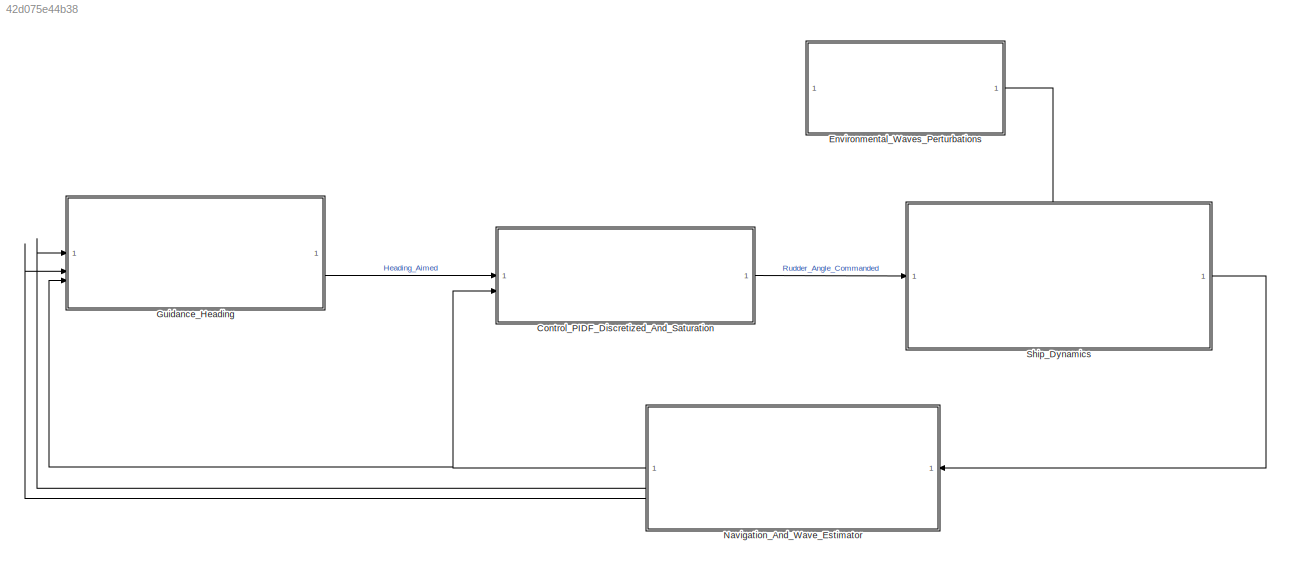
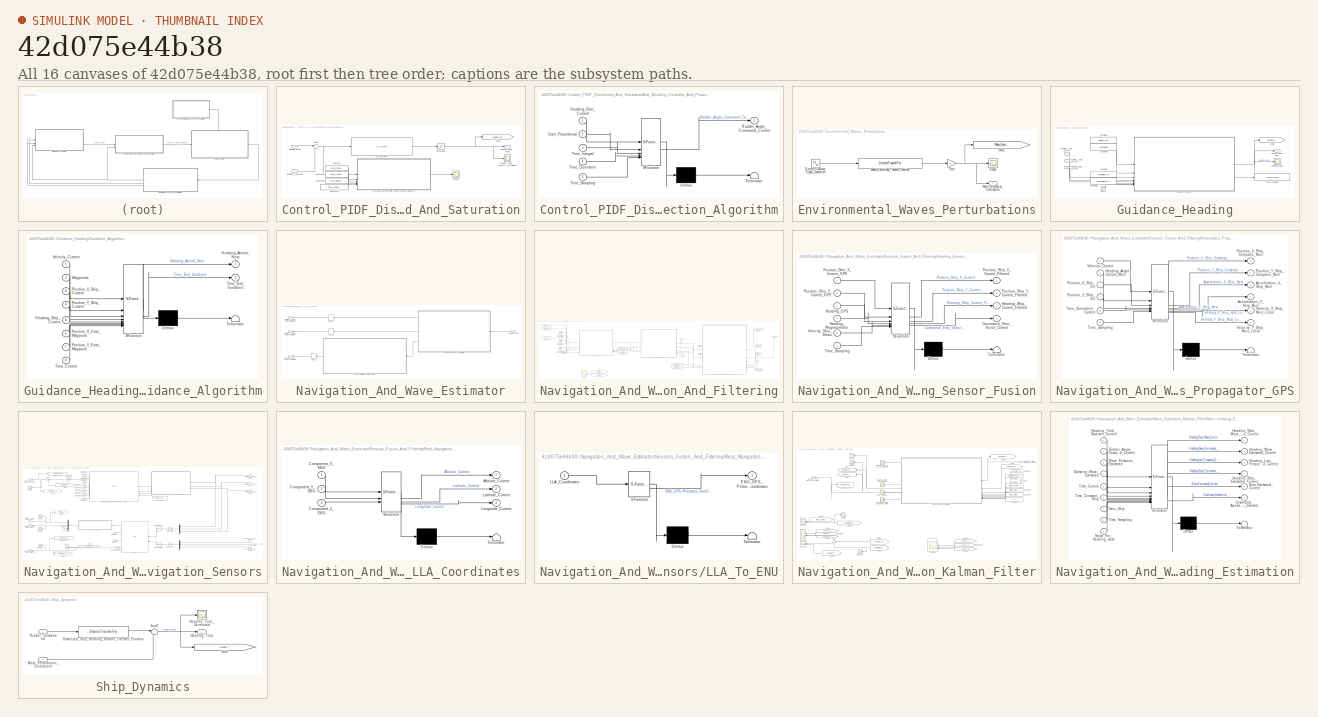
[diagram: thumbnail index - all 16 canvases of the model, root first then tree order]
MODEL slx_42d075e44b38
KIND model
CONFIG AbsTol = auto
CONFIG EnableMultiTasking = off
CONFIG FixedStep = auto
CONFIG MaxStep = auto
CONFIG MinStep = auto
CONFIG RelTol = 1e-3
CONFIG SampleTimeConstraint = Unconstrained
CONFIG SolverName = VariableStepAuto
CONFIG StartTime = 0.0
CONFIG StopTime = 2800
BLOCK [SubSystem] Control_PIDF_Discretized_And_Saturation
BLOCK [SubSystem] Control_PIDF_Discretized_And_Saturation/Anti_Wind-Up_Controller_And_Protection_Algorithm
  ErrorFcn = Stateflow.Translate.translate
  PermitHierarchicalResolution = ExplicitOnly
  SFBlockType = MATLAB Function
  SystemSampleTime = Time_Period_Sampling
  TreatAsAtomicUnit = on
BLOCK [Demux] Control_PIDF_Discretized_And_Saturation/Anti_Wind-Up_Controller_And_Protection_Algorithm/ Demux 
  Outputs = 1
BLOCK [S-Function] Control_PIDF_Discretized_And_Saturation/Anti_Wind-Up_Controller_And_Protection_Algorithm/ SFunction 
  EnableBusSupport = on
  FunctionName = sf_sfun
  PortCounts = [5 2]
  SFcnIsStateOwnerBlock = off
  SFunctionDeploymentMode = off
  Tag = Stateflow S-Function 7
BLOCK [Terminator] Control_PIDF_Discretized_And_Saturation/Anti_Wind-Up_Controller_And_Protection_Algorithm/ Terminator 
BLOCK [Inport] Control_PIDF_Discretized_And_Saturation/Anti_Wind-Up_Controller_And_Protection_Algorithm/Gain_Proportional
  Port = 2
BLOCK [Inport] Control_PIDF_Discretized_And_Saturation/Anti_Wind-Up_Controller_And_Protection_Algorithm/Heading_Error_Current
BLOCK [Outport] Control_PIDF_Discretized_And_Saturation/Anti_Wind-Up_Controller_And_Protection_Algorithm/Rudder_Angle_Command_Current
BLOCK [Inport] Control_PIDF_Discretized_And_Saturation/Anti_Wind-Up_Controller_And_Protection_Algorithm/Time_Derivative
  Port = 4
BLOCK [Inport] Control_PIDF_Discretized_And_Saturation/Anti_Wind-Up_Controller_And_Protection_Algorithm/Time_Integral
  Port = 3
BLOCK [Inport] Control_PIDF_Discretized_And_Saturation/Anti_Wind-Up_Controller_And_Protection_Algorithm/Time_Sampling
  Port = 5
BLOCK [Constant] Control_PIDF_Discretized_And_Saturation/Constant
  Value = Gain_Proportional
BLOCK [Constant] Control_PIDF_Discretized_And_Saturation/Constant1
  Value = Time_Integral
BLOCK [Constant] Control_PIDF_Discretized_And_Saturation/Constant2
  Value = Time_Derivative
BLOCK [Constant] Control_PIDF_Discretized_And_Saturation/Constant3
  Value = Time_Period_Sampling
BLOCK [Goto] Control_PIDF_Discretized_And_Saturation/Goto
  GotoTag = Rudder_Commanded
  TagVisibility = global
BLOCK [Inport] Control_PIDF_Discretized_And_Saturation/Heading_Aimed
BLOCK [Inport] Control_PIDF_Discretized_And_Saturation/Heading_Observed
  Port = 2
BLOCK [Reference] Control_PIDF_Discretized_And_Saturation/LTI System1  REF=cstblocks/LTI System
  SourceBlock = cstblocks/LTI System
  SourceType = LTI Block
BLOCK [Outport] Control_PIDF_Discretized_And_Saturation/Rudder_Angle_Aimed
BLOCK [Scope] Control_PIDF_Discretized_And_Saturation/Rudder_Angle_Saturated_Commanded
  Floating = off
  NumInputPorts = 1
  ScopeSpecificationString = Simulink.scopes.TimeScopeBlockCfg('CurrentConfiguration', extmgr.ConfigurationSet(extmgr.Configuration('Core','General UI',true),extmgr.Configuration('Core','Source UI',true),extmgr.Configuration('Sources','WiredSimulink',true,'DataLoggingVariableName','ScopeData1'),extmgr.Configuration('Visuals','Time Domain',true,'SerializedDisplays',{struct('MinYLimReal','-0.75431','MaxYLimReal','0.76059','YLab...<+1516ch>
BLOCK [Saturate] Control_PIDF_Discretized_And_Saturation/Saturation
  LowerLimit = -35*(pi/180)
  UpperLimit = 35*(pi/180)
BLOCK [Scope] Control_PIDF_Discretized_And_Saturation/Scope1
  Floating = off
  NumInputPorts = 1
  ScopeSpecificationString = Simulink.scopes.TimeScopeBlockCfg('CurrentConfiguration', extmgr.ConfigurationSet(extmgr.Configuration('Core','General UI',true),extmgr.Configuration('Core','Source UI',true),extmgr.Configuration('Sources','WiredSimulink',true,'DataLoggingVariableName','ScopeData1'),extmgr.Configuration('Visuals','Time Domain',true,'SerializedDisplays',{struct('MinYLimReal','-0.76239','MaxYLimReal','0.76235','YLab...<+1571ch>
BLOCK [Sum] Control_PIDF_Discretized_And_Saturation/Sum6
  Inputs = |+-
BLOCK [SubSystem] Environmental_Waves_Perturbations
BLOCK [Sin] Environmental_Waves_Perturbations/Discrete_Sinewave_Signal_Generation
  Amplitude = 5*(pi/180)
  Frequency = Pulsation_Wave
  SampleTime = Time_Period_Sampling
BLOCK [Gain] Environmental_Waves_Perturbations/Gain
BLOCK [Goto] Environmental_Waves_Perturbations/Goto2
  GotoTag = Wave_Generated_Signal
  TagVisibility = global
BLOCK [Scope] Environmental_Waves_Perturbations/Scope5
  Floating = off
  NumInputPorts = 1
  ScopeSpecificationString = Simulink.scopes.TimeScopeBlockCfg('CurrentConfiguration', extmgr.ConfigurationSet(extmgr.Configuration('Core','General UI',true),extmgr.Configuration('Core','Source UI',true),extmgr.Configuration('Sources','WiredSimulink',true,'DataLoggingVariableName','ScopeData2'),extmgr.Configuration('Visuals','Time Domain',true,'SerializedDisplays',{struct('MinYLimReal','-1.00000','MaxYLimReal','1.00000','YLab...<+1487ch>
BLOCK [DiscreteTransferFcn] Environmental_Waves_Perturbations/Wave_Discretized_Transfer_Function
  Denominator = [Wave_Transfer_Function_Discrete.Denominator{1}]
  InputPortMap = u0
  Numerator = [Wave_Transfer_Function_Discrete.Numerator{1}]
BLOCK [Outport] Environmental_Waves_Perturbations/Wave_Perturbation_Contribution
BLOCK [SubSystem] Guidance_Heading
BLOCK [Clock] Guidance_Heading/Clock1
BLOCK [Constant] Guidance_Heading/Constant3
  Value = Velocity_Ship_Mean
BLOCK [Constant] Guidance_Heading/Constant4
  Value = Waypoints
BLOCK [Constant] Guidance_Heading/Constant5
  Value = Waypoints(end,1)
BLOCK [Constant] Guidance_Heading/Constant6
  Value = Waypoints(end,2)
BLOCK [Goto] Guidance_Heading/Goto5
  GotoTag = Heading_Aimed
  TagVisibility = global
BLOCK [SubSystem] Guidance_Heading/Guidance_Algorithm
  ErrorFcn = Stateflow.Translate.translate
  PermitHierarchicalResolution = ExplicitOnly
  SFBlockType = MATLAB Function
  SystemSampleTime = Time_Guidance_Sampling
  TreatAsAtomicUnit = on
BLOCK [Demux] Guidance_Heading/Guidance_Algorithm/ Demux 
  Outputs = 1
BLOCK [S-Function] Guidance_Heading/Guidance_Algorithm/ SFunction 
  EnableBusSupport = on
  FunctionName = sf_sfun
  PortCounts = [8 3]
  SFcnIsStateOwnerBlock = off
  SFunctionDeploymentMode = off
  Tag = Stateflow S-Function 1
BLOCK [Terminator] Guidance_Heading/Guidance_Algorithm/ Terminator 
BLOCK [Outport] Guidance_Heading/Guidance_Algorithm/Heading_Aimed_Next
BLOCK [Inport] Guidance_Heading/Guidance_Algorithm/Heading_Ship_Current
  Port = 5
BLOCK [Inport] Guidance_Heading/Guidance_Algorithm/Position_X_Final_Waypoint
  Port = 6
BLOCK [Inport] Guidance_Heading/Guidance_Algorithm/Position_X_Ship_Current
  Port = 3
BLOCK [Inport] Guidance_Heading/Guidance_Algorithm/Position_Y_Final_Waypoint
  Port = 7
BLOCK [Inport] Guidance_Heading/Guidance_Algorithm/Position_Y_Ship_Current
  Port = 4
BLOCK [Inport] Guidance_Heading/Guidance_Algorithm/Time_Current
  Port = 8
BLOCK [Outport] Guidance_Heading/Guidance_Algorithm/Time_End_Guidance
  Port = 2
BLOCK [Inport] Guidance_Heading/Guidance_Algorithm/Velocity_Current
BLOCK [Inport] Guidance_Heading/Guidance_Algorithm/Waypoints
  Port = 2
BLOCK [Scope] Guidance_Heading/Heading_Aimed
  Floating = off
  NumInputPorts = 1
  ScopeSpecificationString = Simulink.scopes.TimeScopeBlockCfg('CurrentConfiguration', extmgr.ConfigurationSet(extmgr.Configuration('Core','General UI',true),extmgr.Configuration('Core','Source UI',true),extmgr.Configuration('Sources','WiredSimulink',true,'DataLoggingVariableName','ScopeData13'),extmgr.Configuration('Visuals','Time Domain',true,'SerializedDisplays',{struct('MinYLimReal','0.85707','MaxYLimReal','2.8355','YLabe...<+1500ch>
BLOCK [Outport] Guidance_Heading/Heading_Aimed_Next
BLOCK [Inport] Guidance_Heading/Heading_Ship_Current
  Port = 3
BLOCK [Inport] Guidance_Heading/Position_X_Ship_Current
BLOCK [Inport] Guidance_Heading/Position_Y_Ship_Current
  Port = 2
BLOCK [ToWorkspace] Guidance_Heading/To Workspace2
  FixptAsFi = on
  MaxDataPoints = inf
  SampleTime = -1
  SaveFormat = Timeseries
  VariableName = Time_End_Guidance_Algorithm
BLOCK [SubSystem] Navigation_And_Wave_Estimator
BLOCK [Delay] Navigation_And_Wave_Estimator/Delay
  DelayLength = 1
  InputPortMap = u0
  InputProcessing = Columns as channels (frame based)
  NameLocation = top
  SampleTime = 0.1
BLOCK [Delay] Navigation_And_Wave_Estimator/Delay1
  DelayLength = 1
  InputPortMap = u0
  InputProcessing = Columns as channels (frame based)
  NameLocation = top
  SampleTime = 0.1
BLOCK [Delay] Navigation_And_Wave_Estimator/Delay2
  DelayLength = 1
  InputPortMap = u0
  InputProcessing = Columns as channels (frame based)
  NameLocation = top
  SampleTime = 0.1
BLOCK [Outport] Navigation_And_Wave_Estimator/Heading_Low_Frequency_Filtered_Estimated
BLOCK [Inport] Navigation_And_Wave_Estimator/Heading_Total
BLOCK [Outport] Navigation_And_Wave_Estimator/Position_X_Ship_Current_Estimated
  Port = 2
BLOCK [Outport] Navigation_And_Wave_Estimator/Position_Y_Ship_Current_Estimated
  Port = 3
BLOCK [SubSystem] Navigation_And_Wave_Estimator/Sensors_Fusion_And_Filtering
BLOCK [Clock] Navigation_And_Wave_Estimator/Sensors_Fusion_And_Filtering/Clock
BLOCK [Constant] Navigation_And_Wave_Estimator/Sensors_Fusion_And_Filtering/Constant
  Value = Velocity_Ship_Mean
BLOCK [Constant] Navigation_And_Wave_Estimator/Sensors_Fusion_And_Filtering/Constant1
  Value = Position_Initial_X
BLOCK [Constant] Navigation_And_Wave_Estimator/Sensors_Fusion_And_Filtering/Constant2
  Value = Position_Initial_Y
BLOCK [Constant] Navigation_And_Wave_Estimator/Sensors_Fusion_And_Filtering/Constant3
  Value = Time_Period_Sampling
BLOCK [Constant] Navigation_And_Wave_Estimator/Sensors_Fusion_And_Filtering/Constant6
  Value = Velocity_Ship_Mean
BLOCK [Constant] Navigation_And_Wave_Estimator/Sensors_Fusion_And_Filtering/Constant7
  Value = 0
BLOCK [Constant] Navigation_And_Wave_Estimator/Sensors_Fusion_And_Filtering/Constant8
  Value = 0
BLOCK [Constant] Navigation_And_Wave_Estimator/Sensors_Fusion_And_Filtering/Constant9
  Value = Time_Period_Sampling
BLOCK [From] Navigation_And_Wave_Estimator/Sensors_Fusion_And_Filtering/From
  GotoTag = Position_X_Filtered
  TagVisibility = global
BLOCK [From] Navigation_And_Wave_Estimator/Sensors_Fusion_And_Filtering/From1
  GotoTag = Position_X_Noisy
  TagVisibility = global
BLOCK [Goto] Navigation_And_Wave_Estimator/Sensors_Fusion_And_Filtering/Goto
  GotoTag = Position_X_Filtered
  TagVisibility = global
BLOCK [SubSystem] Navigation_And_Wave_Estimator/Sensors_Fusion_And_Filtering/Heading_Sensor_Fusion
  ErrorFcn = Stateflow.Translate.translate
  PermitHierarchicalResolution = ExplicitOnly
  SFBlockType = MATLAB Function
  SystemSampleTime = Time_Period_Sampling
  TreatAsAtomicUnit = on
BLOCK [Demux] Navigation_And_Wave_Estimator/Sensors_Fusion_And_Filtering/Heading_Sensor_Fusion/ Demux 
  Outputs = 1
BLOCK [S-Function] Navigation_And_Wave_Estimator/Sensors_Fusion_And_Filtering/Heading_Sensor_Fusion/ SFunction 
  EnableBusSupport = on
  FunctionName = sf_sfun
  PortCounts = [6 5]
  SFcnIsStateOwnerBlock = off
  SFunctionDeploymentMode = off
  Tag = Stateflow S-Function 5
BLOCK [Terminator] Navigation_And_Wave_Estimator/Sensors_Fusion_And_Filtering/Heading_Sensor_Fusion/ Terminator 
BLOCK [Outport] Navigation_And_Wave_Estimator/Sensors_Fusion_And_Filtering/Heading_Sensor_Fusion/Covariance_Error_Vector_Current
  Port = 4
BLOCK [Inport] Navigation_And_Wave_Estimator/Sensors_Fusion_And_Filtering/Heading_Sensor_Fusion/Heading_GPS
  Port = 3
BLOCK [Inport] Navigation_And_Wave_Estimator/Sensors_Fusion_And_Filtering/Heading_Sensor_Fusion/Heading_Magnetometer
  Port = 4
BLOCK [Outport] Navigation_And_Wave_Estimator/Sensors_Fusion_And_Filtering/Heading_Sensor_Fusion/Heading_Ship_Current_Filtered
  Port = 3
BLOCK [Outport] Navigation_And_Wave_Estimator/Sensors_Fusion_And_Filtering/Heading_Sensor_Fusion/Position_Ship_X_Current_Filtered
BLOCK [Inport] Navigation_And_Wave_Estimator/Sensors_Fusion_And_Filtering/Heading_Sensor_Fusion/Position_Ship_X_Current_GPS
BLOCK [Outport] Navigation_And_Wave_Estimator/Sensors_Fusion_And_Filtering/Heading_Sensor_Fusion/Position_Ship_Y_Current_Filtered
  Port = 2
BLOCK [Inport] Navigation_And_Wave_Estimator/Sensors_Fusion_And_Filtering/Heading_Sensor_Fusion/Position_Ship_Y_Current_GPS
  Port = 2
BLOCK [Inport] Navigation_And_Wave_Estimator/Sensors_Fusion_And_Filtering/Heading_Sensor_Fusion/Time_Sampling
  Port = 6
BLOCK [Inport] Navigation_And_Wave_Estimator/Sensors_Fusion_And_Filtering/Heading_Sensor_Fusion/Velocity_Ship_Mean
  Port = 5
BLOCK [Outport] Navigation_And_Wave_Estimator/Sensors_Fusion_And_Filtering/Heading_Ship_Current_Filtered
  Port = 3
BLOCK [Inport] Navigation_And_Wave_Estimator/Sensors_Fusion_And_Filtering/Heading_Total
BLOCK [SubSystem] Navigation_And_Wave_Estimator/Sensors_Fusion_And_Filtering/Kinematics_Propagator_GPS
  ErrorFcn = Stateflow.Translate.translate
  PermitHierarchicalResolution = ExplicitOnly
  SFBlockType = MATLAB Function
  SystemSampleTime = Time_Period_Sampling
  TreatAsAtomicUnit = on
BLOCK [Demux] Navigation_And_Wave_Estimator/Sensors_Fusion_And_Filtering/Kinematics_Propagator_GPS/ Demux 
  Outputs = 1
BLOCK [S-Function] Navigation_And_Wave_Estimator/Sensors_Fusion_And_Filtering/Kinematics_Propagator_GPS/ SFunction 
  EnableBusSupport = on
  FunctionName = sf_sfun
  PortCounts = [6 7]
  SFcnIsStateOwnerBlock = off
  SFunctionDeploymentMode = off
  Tag = Stateflow S-Function 3
BLOCK [Terminator] Navigation_And_Wave_Estimator/Sensors_Fusion_And_Filtering/Kinematics_Propagator_GPS/ Terminator 
BLOCK [Outport] Navigation_And_Wave_Estimator/Sensors_Fusion_And_Filtering/Kinematics_Propagator_GPS/Acceleration_X_Ship_Next
  Port = 3
BLOCK [Outport] Navigation_And_Wave_Estimator/Sensors_Fusion_And_Filtering/Kinematics_Propagator_GPS/Acceleration_Y_Ship_Next
  Port = 4
BLOCK [Inport] Navigation_And_Wave_Estimator/Sensors_Fusion_And_Filtering/Kinematics_Propagator_GPS/Heading_Angle_Current_Mes
  Port = 2
BLOCK [Outport] Navigation_And_Wave_Estimator/Sensors_Fusion_And_Filtering/Kinematics_Propagator_GPS/Position_X_Ship_Compass_Next
BLOCK [Inport] Navigation_And_Wave_Estimator/Sensors_Fusion_And_Filtering/Kinematics_Propagator_GPS/Position_X_Ship_Init
  Port = 3
BLOCK [Outport] Navigation_And_Wave_Estimator/Sensors_Fusion_And_Filtering/Kinematics_Propagator_GPS/Position_Y_Ship_Compass_Next
  Port = 2
BLOCK [Inport] Navigation_And_Wave_Estimator/Sensors_Fusion_And_Filtering/Kinematics_Propagator_GPS/Position_Y_Ship_Init
  Port = 4
BLOCK [Inport] Navigation_And_Wave_Estimator/Sensors_Fusion_And_Filtering/Kinematics_Propagator_GPS/Time_Sampling
  Port = 6
BLOCK [Inport] Navigation_And_Wave_Estimator/Sensors_Fusion_And_Filtering/Kinematics_Propagator_GPS/Time_Simulation_Current
  Port = 5
BLOCK [Inport] Navigation_And_Wave_Estimator/Sensors_Fusion_And_Filtering/Kinematics_Propagator_GPS/Velocity_Current
BLOCK [Outport] Navigation_And_Wave_Estimator/Sensors_Fusion_And_Filtering/Kinematics_Propagator_GPS/Velocity_X_Ship_Next_Local
  Port = 5
BLOCK [Outport] Navigation_And_Wave_Estimator/Sensors_Fusion_And_Filtering/Kinematics_Propagator_GPS/Velocity_Y_Ship_Next_Local
  Port = 6
BLOCK [Outport] Navigation_And_Wave_Estimator/Sensors_Fusion_And_Filtering/Position_Ship_X_Current_Filtered
BLOCK [Outport] Navigation_And_Wave_Estimator/Sensors_Fusion_And_Filtering/Position_Ship_Y_Current_Filtered
  Port = 2
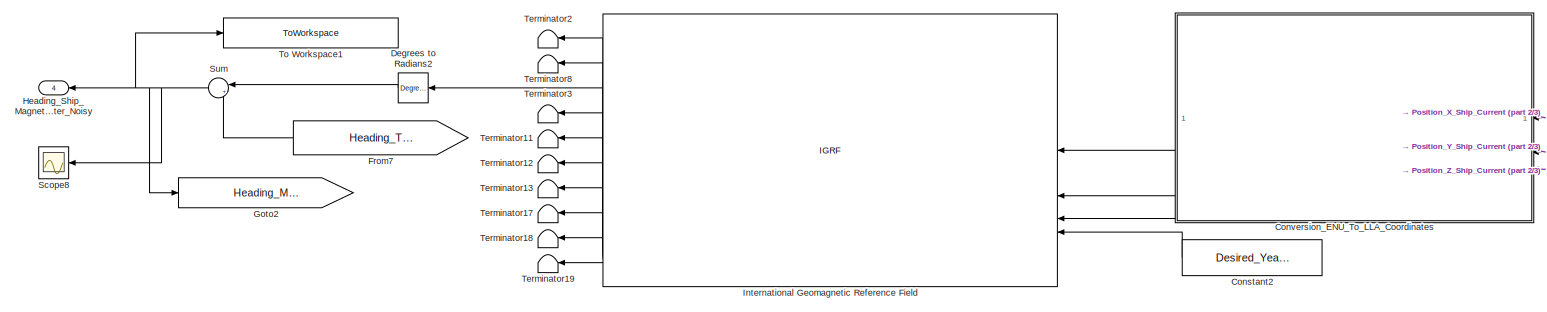
[diagram: Navigation_And_Wave_Estimator/Sensors_Fusion_And_Filtering/Real_Navigation_Sensors - part 1/3, top center region]
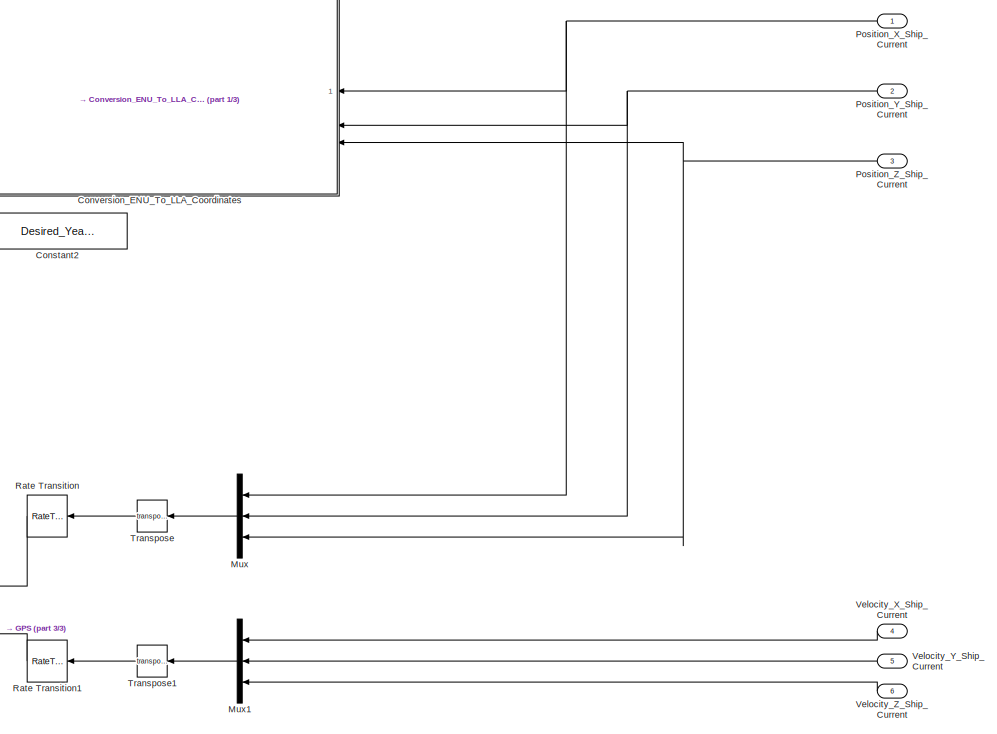
[diagram: Navigation_And_Wave_Estimator/Sensors_Fusion_And_Filtering/Real_Navigation_Sensors - part 2/3, right side, full height]
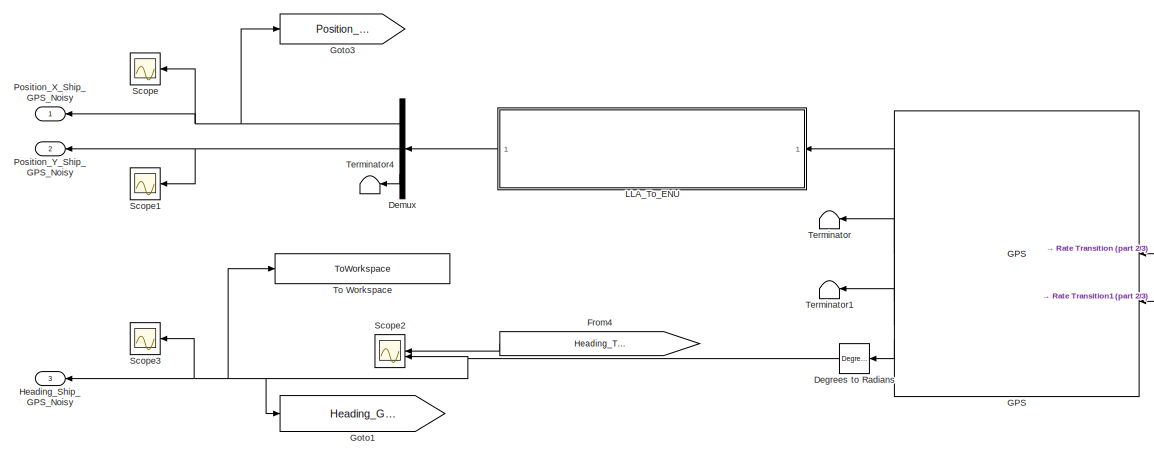
[diagram: Navigation_And_Wave_Estimator/Sensors_Fusion_And_Filtering/Real_Navigation_Sensors - part 3/3, bottom left region]
BLOCK [SubSystem] Navigation_And_Wave_Estimator/Sensors_Fusion_And_Filtering/Real_Navigation_Sensors
BLOCK [Constant] Navigation_And_Wave_Estimator/Sensors_Fusion_And_Filtering/Real_Navigation_Sensors/Constant2
  Value = Desired_Year_IGRF
BLOCK [SubSystem] Navigation_And_Wave_Estimator/Sensors_Fusion_And_Filtering/Real_Navigation_Sensors/Conversion_ENU_To_LLA_Coordinates
  ErrorFcn = Stateflow.Translate.translate
  PermitHierarchicalResolution = ExplicitOnly
  SFBlockType = MATLAB Function
  SystemSampleTime = Time_Period_Sampling
  TreatAsAtomicUnit = on
BLOCK [Demux] Navigation_And_Wave_Estimator/Sensors_Fusion_And_Filtering/Real_Navigation_Sensors/Conversion_ENU_To_LLA_Coordinates/ Demux 
  Outputs = 1
BLOCK [S-Function] Navigation_And_Wave_Estimator/Sensors_Fusion_And_Filtering/Real_Navigation_Sensors/Conversion_ENU_To_LLA_Coordinates/ SFunction 
  EnableBusSupport = on
  FunctionName = sf_sfun
  PortCounts = [3 4]
  SFcnIsStateOwnerBlock = off
  SFunctionDeploymentMode = off
  Tag = Stateflow S-Function 2
BLOCK [Terminator] Navigation_And_Wave_Estimator/Sensors_Fusion_And_Filtering/Real_Navigation_Sensors/Conversion_ENU_To_LLA_Coordinates/ Terminator 
BLOCK [Outport] Navigation_And_Wave_Estimator/Sensors_Fusion_And_Filtering/Real_Navigation_Sensors/Conversion_ENU_To_LLA_Coordinates/Altitude_Current
BLOCK [Inport] Navigation_And_Wave_Estimator/Sensors_Fusion_And_Filtering/Real_Navigation_Sensors/Conversion_ENU_To_LLA_Coordinates/Component_X_ENU
BLOCK [Inport] Navigation_And_Wave_Estimator/Sensors_Fusion_And_Filtering/Real_Navigation_Sensors/Conversion_ENU_To_LLA_Coordinates/Component_Y_ENU
  Port = 2
BLOCK [Inport] Navigation_And_Wave_Estimator/Sensors_Fusion_And_Filtering/Real_Navigation_Sensors/Conversion_ENU_To_LLA_Coordinates/Component_Z_ENU
  Port = 3
BLOCK [Outport] Navigation_And_Wave_Estimator/Sensors_Fusion_And_Filtering/Real_Navigation_Sensors/Conversion_ENU_To_LLA_Coordinates/Latitude_Current
  Port = 2
BLOCK [Outport] Navigation_And_Wave_Estimator/Sensors_Fusion_And_Filtering/Real_Navigation_Sensors/Conversion_ENU_To_LLA_Coordinates/Longitude_Current
  Port = 3
BLOCK [Reference] Navigation_And_Wave_Estimator/Sensors_Fusion_And_Filtering/Real_Navigation_Sensors/Degrees to Radians  REF=simulink_extras/Transformations/Degrees to
Radians
  SourceBlock = simulink_extras/Transformations/Degrees to\nRadians
  SourceType = DegreesToRadians
BLOCK [Reference] Navigation_And_Wave_Estimator/Sensors_Fusion_And_Filtering/Real_Navigation_Sensors/Degrees to Radians2  REF=simulink_extras/Transformations/Degrees to
Radians
  NameLocation = top
  SourceBlock = simulink_extras/Transformations/Degrees to\nRadians
  SourceType = DegreesToRadians
BLOCK [Demux] Navigation_And_Wave_Estimator/Sensors_Fusion_And_Filtering/Real_Navigation_Sensors/Demux
  Outputs = 3
BLOCK [From] Navigation_And_Wave_Estimator/Sensors_Fusion_And_Filtering/Real_Navigation_Sensors/From4
  GotoTag = Heading_Total_LF_Wave_Control
  TagVisibility = global
BLOCK [From] Navigation_And_Wave_Estimator/Sensors_Fusion_And_Filtering/Real_Navigation_Sensors/From7
  GotoTag = Heading_Total_LF_Wave_Control
  TagVisibility = global
BLOCK [Reference] Navigation_And_Wave_Estimator/Sensors_Fusion_And_Filtering/Real_Navigation_Sensors/GPS  REF=sensorgpslib/GPS
  SourceBlock = sensorgpslib/GPS
  SourceType = fusion.internal.simulink.gpsSensor
BLOCK [Goto] Navigation_And_Wave_Estimator/Sensors_Fusion_And_Filtering/Real_Navigation_Sensors/Goto1
  GotoTag = Heading_GPS_Noisy
  TagVisibility = global
BLOCK [Goto] Navigation_And_Wave_Estimator/Sensors_Fusion_And_Filtering/Real_Navigation_Sensors/Goto2
  GotoTag = Heading_Magnetometer_Noisy
  TagVisibility = global
BLOCK [Goto] Navigation_And_Wave_Estimator/Sensors_Fusion_And_Filtering/Real_Navigation_Sensors/Goto3
  GotoTag = Position_X_Noisy
  TagVisibility = global
BLOCK [Outport] Navigation_And_Wave_Estimator/Sensors_Fusion_And_Filtering/Real_Navigation_Sensors/Heading_Ship_GPS_Noisy
  Port = 3
BLOCK [Outport] Navigation_And_Wave_Estimator/Sensors_Fusion_And_Filtering/Real_Navigation_Sensors/Heading_Ship_Magnetometer_Noisy
  Port = 4
BLOCK [IGRF] Navigation_And_Wave_Estimator/Sensors_Fusion_And_Filtering/Real_Navigation_Sensors/International Geomagnetic Reference Field
  AttributesFormatString = %<generation>
  day = 1
  month = January
  year = 2020
BLOCK [SubSystem] Navigation_And_Wave_Estimator/Sensors_Fusion_And_Filtering/Real_Navigation_Sensors/LLA_To_ENU
  ErrorFcn = Stateflow.Translate.translate
  PermitHierarchicalResolution = ExplicitOnly
  SFBlockType = MATLAB Function
  SystemSampleTime = Time_Period_Sampling
  TreatAsAtomicUnit = on
BLOCK [Demux] Navigation_And_Wave_Estimator/Sensors_Fusion_And_Filtering/Real_Navigation_Sensors/LLA_To_ENU/ Demux 
  Outputs = 1
BLOCK [S-Function] Navigation_And_Wave_Estimator/Sensors_Fusion_And_Filtering/Real_Navigation_Sensors/LLA_To_ENU/ SFunction 
  EnableBusSupport = on
  FunctionName = sf_sfun
  PortCounts = [1 2]
  SFcnIsStateOwnerBlock = off
  SFunctionDeploymentMode = off
  Tag = Stateflow S-Function 6
BLOCK [Terminator] Navigation_And_Wave_Estimator/Sensors_Fusion_And_Filtering/Real_Navigation_Sensors/LLA_To_ENU/ Terminator 
BLOCK [Outport] Navigation_And_Wave_Estimator/Sensors_Fusion_And_Filtering/Real_Navigation_Sensors/LLA_To_ENU/ENU_GPS_Perturbed_Coordinates
BLOCK [Inport] Navigation_And_Wave_Estimator/Sensors_Fusion_And_Filtering/Real_Navigation_Sensors/LLA_To_ENU/LLA_Coordinates
BLOCK [Mux] Navigation_And_Wave_Estimator/Sensors_Fusion_And_Filtering/Real_Navigation_Sensors/Mux
  DisplayOption = bar
  Inputs = 3
BLOCK [Mux] Navigation_And_Wave_Estimator/Sensors_Fusion_And_Filtering/Real_Navigation_Sensors/Mux1
  DisplayOption = bar
  Inputs = 3
BLOCK [Inport] Navigation_And_Wave_Estimator/Sensors_Fusion_And_Filtering/Real_Navigation_Sensors/Position_X_Ship_Current
BLOCK [Outport] Navigation_And_Wave_Estimator/Sensors_Fusion_And_Filtering/Real_Navigation_Sensors/Position_X_Ship_GPS_Noisy
BLOCK [Inport] Navigation_And_Wave_Estimator/Sensors_Fusion_And_Filtering/Real_Navigation_Sensors/Position_Y_Ship_Current
  Port = 2
BLOCK [Outport] Navigation_And_Wave_Estimator/Sensors_Fusion_And_Filtering/Real_Navigation_Sensors/Position_Y_Ship_GPS_Noisy
  Port = 2
BLOCK [Inport] Navigation_And_Wave_Estimator/Sensors_Fusion_And_Filtering/Real_Navigation_Sensors/Position_Z_Ship_Current
  Port = 3
BLOCK [RateTransition] Navigation_And_Wave_Estimator/Sensors_Fusion_And_Filtering/Real_Navigation_Sensors/Rate Transition
  OutPortSampleTime = Time_Period_Sampling
BLOCK [RateTransition] Navigation_And_Wave_Estimator/Sensors_Fusion_And_Filtering/Real_Navigation_Sensors/Rate Transition1
  OutPortSampleTime = Time_Period_Sampling
BLOCK [Scope] Navigation_And_Wave_Estimator/Sensors_Fusion_And_Filtering/Real_Navigation_Sensors/Scope
  Floating = off
  NumInputPorts = 1
  ScopeSpecificationString = Simulink.scopes.TimeScopeBlockCfg('CurrentConfiguration', extmgr.ConfigurationSet(extmgr.Configuration('Core','General UI',true),extmgr.Configuration('Core','Source UI',true),extmgr.Configuration('Sources','WiredSimulink',true,'DataLoggingVariableName','ScopeData1'),extmgr.Configuration('Visuals','Time Domain',true,'SerializedDisplays',{struct('MinYLimReal','19.73999','MaxYLimReal','2537.26748','Y...<+1513ch>
BLOCK [Scope] Navigation_And_Wave_Estimator/Sensors_Fusion_And_Filtering/Real_Navigation_Sensors/Scope1
  Floating = off
  NumInputPorts = 1
  ScopeSpecificationString = Simulink.scopes.TimeScopeBlockCfg('CurrentConfiguration', extmgr.ConfigurationSet(extmgr.Configuration('Core','General UI',true),extmgr.Configuration('Core','Source UI',true),extmgr.Configuration('Sources','WiredSimulink',true,'DataLoggingVariableName','ScopeData2'),extmgr.Configuration('Visuals','Time Domain',true,'SerializedDisplays',{struct('MinYLimReal','314.80287','MaxYLimReal','358.0736','YL...<+1509ch>
BLOCK [Scope] Navigation_And_Wave_Estimator/Sensors_Fusion_And_Filtering/Real_Navigation_Sensors/Scope2
  Floating = off
  NumInputPorts = 2
  ScopeSpecificationString = Simulink.scopes.TimeScopeBlockCfg('CurrentConfiguration', extmgr.ConfigurationSet(extmgr.Configuration('Core','General UI',true),extmgr.Configuration('Core','Source UI',true),extmgr.Configuration('Sources','WiredSimulink',true,'DataLoggingVariableName','ScopeData8'),extmgr.Configuration('Visuals','Time Domain',true,'SerializedDisplays',{struct('MinYLimReal','-93879148325352120489325016824231685945...<+3983ch>
BLOCK [Scope] Navigation_And_Wave_Estimator/Sensors_Fusion_And_Filtering/Real_Navigation_Sensors/Scope3
  Floating = off
  NumInputPorts = 1
  ScopeSpecificationString = Simulink.scopes.TimeScopeBlockCfg('CurrentConfiguration', extmgr.ConfigurationSet(extmgr.Configuration('Core','General UI',true),extmgr.Configuration('Core','Source UI',true),extmgr.Configuration('Sources','WiredSimulink',true,'DataLoggingVariableName','ScopeData5'),extmgr.Configuration('Visuals','Time Domain',true,'SerializedDisplays',{struct('MinYLimReal','0.00686','MaxYLimReal','1.49994','YLabe...<+1508ch>
BLOCK [Scope] Navigation_And_Wave_Estimator/Sensors_Fusion_And_Filtering/Real_Navigation_Sensors/Scope8
  Floating = off
  NumInputPorts = 1
  ScopeSpecificationString = Simulink.scopes.TimeScopeBlockCfg('CurrentConfiguration', extmgr.ConfigurationSet(extmgr.Configuration('Core','General UI',true),extmgr.Configuration('Core','Source UI',true),extmgr.Configuration('Sources','WiredSimulink',true,'DataLoggingVariableName','ScopeData11'),extmgr.Configuration('Visuals','Time Domain',true,'SerializedDisplays',{struct('MinYLimReal','1.26044','MaxYLimReal','1.47491','YLab...<+1469ch>
BLOCK [Sum] Navigation_And_Wave_Estimator/Sensors_Fusion_And_Filtering/Real_Navigation_Sensors/Sum
  Inputs = |++
BLOCK [Terminator] Navigation_And_Wave_Estimator/Sensors_Fusion_And_Filtering/Real_Navigation_Sensors/Terminator
BLOCK [Terminator] Navigation_And_Wave_Estimator/Sensors_Fusion_And_Filtering/Real_Navigation_Sensors/Terminator1
BLOCK [Terminator] Navigation_And_Wave_Estimator/Sensors_Fusion_And_Filtering/Real_Navigation_Sensors/Terminator11
BLOCK [Terminator] Navigation_And_Wave_Estimator/Sensors_Fusion_And_Filtering/Real_Navigation_Sensors/Terminator12
BLOCK [Terminator] Navigation_And_Wave_Estimator/Sensors_Fusion_And_Filtering/Real_Navigation_Sensors/Terminator13
BLOCK [Terminator] Navigation_And_Wave_Estimator/Sensors_Fusion_And_Filtering/Real_Navigation_Sensors/Terminator17
BLOCK [Terminator] Navigation_And_Wave_Estimator/Sensors_Fusion_And_Filtering/Real_Navigation_Sensors/Terminator18
BLOCK [Terminator] Navigation_And_Wave_Estimator/Sensors_Fusion_And_Filtering/Real_Navigation_Sensors/Terminator19
BLOCK [Terminator] Navigation_And_Wave_Estimator/Sensors_Fusion_And_Filtering/Real_Navigation_Sensors/Terminator2
BLOCK [Terminator] Navigation_And_Wave_Estimator/Sensors_Fusion_And_Filtering/Real_Navigation_Sensors/Terminator3
BLOCK [Terminator] Navigation_And_Wave_Estimator/Sensors_Fusion_And_Filtering/Real_Navigation_Sensors/Terminator4
BLOCK [Terminator] Navigation_And_Wave_Estimator/Sensors_Fusion_And_Filtering/Real_Navigation_Sensors/Terminator8
BLOCK [ToWorkspace] Navigation_And_Wave_Estimator/Sensors_Fusion_And_Filtering/Real_Navigation_Sensors/To Workspace
  FixptAsFi = on
  MaxDataPoints = inf
  SampleTime = Time_Period_Sampling
  SaveFormat = Timeseries
  VariableName = Heading_Noisy_GPS
BLOCK [ToWorkspace] Navigation_And_Wave_Estimator/Sensors_Fusion_And_Filtering/Real_Navigation_Sensors/To Workspace1
  FixptAsFi = on
  MaxDataPoints = inf
  SampleTime = Time_Period_Sampling
  SaveFormat = Timeseries
  VariableName = Heading_Noisy_Magnetometer
BLOCK [Math] Navigation_And_Wave_Estimator/Sensors_Fusion_And_Filtering/Real_Navigation_Sensors/Transpose
  Operator = transpose
BLOCK [Math] Navigation_And_Wave_Estimator/Sensors_Fusion_And_Filtering/Real_Navigation_Sensors/Transpose1
  Operator = transpose
BLOCK [Inport] Navigation_And_Wave_Estimator/Sensors_Fusion_And_Filtering/Real_Navigation_Sensors/Velocity_X_Ship_Current
  Port = 4
BLOCK [Inport] Navigation_And_Wave_Estimator/Sensors_Fusion_And_Filtering/Real_Navigation_Sensors/Velocity_Y_Ship_Current
  Port = 5
BLOCK [Inport] Navigation_And_Wave_Estimator/Sensors_Fusion_And_Filtering/Real_Navigation_Sensors/Velocity_Z_Ship_Current
  Port = 6
BLOCK [Scope] Navigation_And_Wave_Estimator/Sensors_Fusion_And_Filtering/Scope
  Floating = off
  NumInputPorts = 1
  ScopeSpecificationString = Simulink.scopes.TimeScopeBlockCfg('CurrentConfiguration', extmgr.ConfigurationSet(extmgr.Configuration('Core','General UI',true),extmgr.Configuration('Core','Source UI',true),extmgr.Configuration('Sources','WiredSimulink',true,'DataLoggingVariableName','ScopeData1'),extmgr.Configuration('Visuals','Time Domain',true),extmgr.Configuration('Tools','Plot Navigation',true),extmgr.Configuration('Tools',...<+40ch>
BLOCK [Scope] Navigation_And_Wave_Estimator/Sensors_Fusion_And_Filtering/Scope1
  Floating = off
  NumInputPorts = 1
  ScopeSpecificationString = Simulink.scopes.TimeScopeBlockCfg('CurrentConfiguration', extmgr.ConfigurationSet(extmgr.Configuration('Core','General UI',true),extmgr.Configuration('Core','Source UI',true),extmgr.Configuration('Sources','WiredSimulink',true,'DataLoggingVariableName','ScopeData8'),extmgr.Configuration('Visuals','Time Domain',true,'SerializedDisplays',{struct('MinYLimReal','-59.08141','MaxYLimReal','3247.68431','...<+1516ch>
BLOCK [Scope] Navigation_And_Wave_Estimator/Sensors_Fusion_And_Filtering/Scope2
  Floating = off
  NumInputPorts = 1
  ScopeSpecificationString = Simulink.scopes.TimeScopeBlockCfg('CurrentConfiguration', extmgr.ConfigurationSet(extmgr.Configuration('Core','General UI',true),extmgr.Configuration('Core','Source UI',true),extmgr.Configuration('Sources','WiredSimulink',true,'DataLoggingVariableName','ScopeData9'),extmgr.Configuration('Visuals','Time Domain',true,'SerializedDisplays',{struct('MinYLimReal','-1282.34077','MaxYLimReal','-1280.07756...<+1545ch>
BLOCK [Scope] Navigation_And_Wave_Estimator/Sensors_Fusion_And_Filtering/Scope3
  Floating = off
  NumInputPorts = 1
  ScopeSpecificationString = Simulink.scopes.TimeScopeBlockCfg('CurrentConfiguration', extmgr.ConfigurationSet(extmgr.Configuration('Core','General UI',true),extmgr.Configuration('Core','Source UI',true),extmgr.Configuration('Sources','WiredSimulink',true,'DataLoggingVariableName','ScopeData10'),extmgr.Configuration('Visuals','Time Domain',true),extmgr.Configuration('Tools','Plot Navigation',true),extmgr.Configuration('Tools'...<+41ch>
BLOCK [Scope] Navigation_And_Wave_Estimator/Sensors_Fusion_And_Filtering/Scope4
  Floating = off
  NumInputPorts = 2
  ScopeSpecificationString = Simulink.scopes.TimeScopeBlockCfg('CurrentConfiguration', extmgr.ConfigurationSet(extmgr.Configuration('Core','General UI',true),extmgr.Configuration('Core','Source UI',true),extmgr.Configuration('Sources','WiredSimulink',true,'DataLoggingVariableName','ScopeData1'),extmgr.Configuration('Visuals','Time Domain',true,'SerializedDisplays',{struct('MinYLimReal','19.76143','MaxYLimReal','2537.07452','Y...<+1550ch>
BLOCK [Terminator] Navigation_And_Wave_Estimator/Sensors_Fusion_And_Filtering/Terminator1
BLOCK [Terminator] Navigation_And_Wave_Estimator/Sensors_Fusion_And_Filtering/Terminator3
BLOCK [ToWorkspace] Navigation_And_Wave_Estimator/Sensors_Fusion_And_Filtering/To Workspace
  FixptAsFi = on
  MaxDataPoints = inf
  SampleTime = Time_Period_Sampling
  SaveFormat = Timeseries
  VariableName = Position_Along_X_Axis
BLOCK [ToWorkspace] Navigation_And_Wave_Estimator/Sensors_Fusion_And_Filtering/To Workspace1
  FixptAsFi = on
  MaxDataPoints = inf
  SampleTime = Time_Period_Sampling
  SaveFormat = Timeseries
  VariableName = Position_Along_Y_Axis
BLOCK [ToWorkspace] Navigation_And_Wave_Estimator/Sensors_Fusion_And_Filtering/To Workspace2
  FixptAsFi = on
  MaxDataPoints = inf
  SampleTime = Time_Period_Sampling
  SaveFormat = Timeseries
  VariableName = Velocity_Along_X_Axis_Local
BLOCK [ToWorkspace] Navigation_And_Wave_Estimator/Sensors_Fusion_And_Filtering/To Workspace3
  FixptAsFi = on
  MaxDataPoints = inf
  SampleTime = Time_Period_Sampling
  SaveFormat = Timeseries
  VariableName = Velocity_Along_Y_Axis_Local
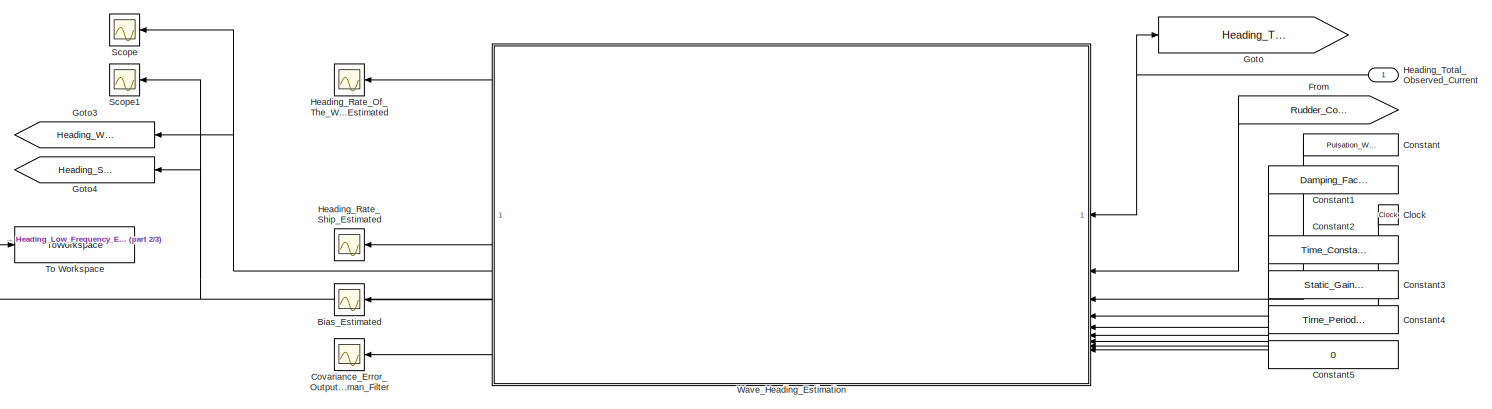
[diagram: Navigation_And_Wave_Estimator/Wave_Estimation_Kalman_Filter - part 1/3, full width, top band]
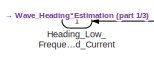
[diagram: Navigation_And_Wave_Estimator/Wave_Estimation_Kalman_Filter - part 2/3, top left region]
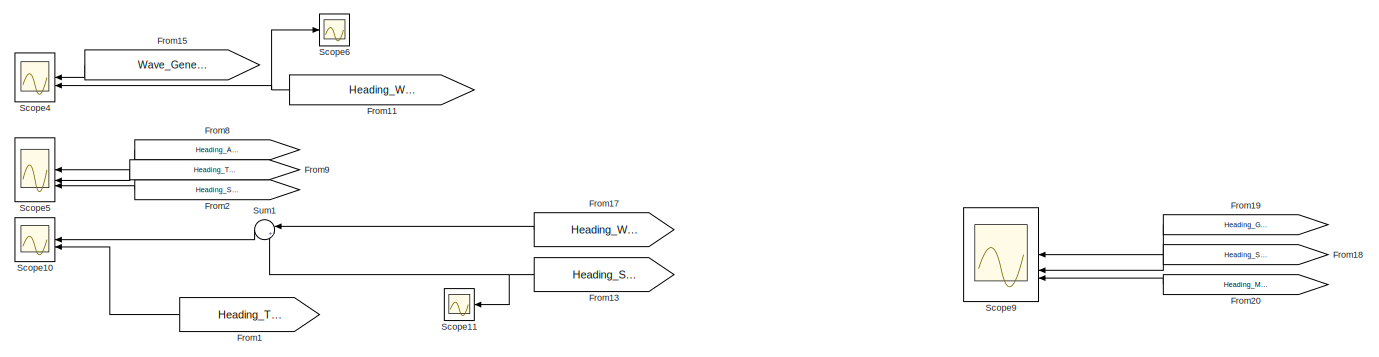
[diagram: Navigation_And_Wave_Estimator/Wave_Estimation_Kalman_Filter - part 3/3, full width, bottom band]
BLOCK [SubSystem] Navigation_And_Wave_Estimator/Wave_Estimation_Kalman_Filter
BLOCK [Scope] Navigation_And_Wave_Estimator/Wave_Estimation_Kalman_Filter/Bias_Estimated
  Floating = off
  NumInputPorts = 1
  ScopeSpecificationString = Simulink.scopes.TimeScopeBlockCfg('CurrentConfiguration', extmgr.ConfigurationSet(extmgr.Configuration('Core','General UI',true),extmgr.Configuration('Core','Source UI',true),extmgr.Configuration('Sources','WiredSimulink',true,'DataLoggingVariableName','ScopeData9'),extmgr.Configuration('Visuals','Time Domain',true),extmgr.Configuration('Tools','Plot Navigation',true),extmgr.Configuration('Tools',...<+40ch>
BLOCK [Clock] Navigation_And_Wave_Estimator/Wave_Estimation_Kalman_Filter/Clock
BLOCK [Constant] Navigation_And_Wave_Estimator/Wave_Estimation_Kalman_Filter/Constant
  SampleTime = Time_Period_Sampling
  Value = Pulsation_Wave
BLOCK [Constant] Navigation_And_Wave_Estimator/Wave_Estimation_Kalman_Filter/Constant1
  SampleTime = Time_Period_Sampling
  Value = Damping_Factor_Waves
BLOCK [Constant] Navigation_And_Wave_Estimator/Wave_Estimation_Kalman_Filter/Constant2
  SampleTime = Time_Period_Sampling
  Value = Time_Constant_Total
BLOCK [Constant] Navigation_And_Wave_Estimator/Wave_Estimation_Kalman_Filter/Constant3
  SampleTime = Time_Period_Sampling
  Value = Static_Gain_Nomoto
BLOCK [Constant] Navigation_And_Wave_Estimator/Wave_Estimation_Kalman_Filter/Constant4
  SampleTime = Time_Period_Sampling
  Value = Time_Period_Sampling
BLOCK [Constant] Navigation_And_Wave_Estimator/Wave_Estimation_Kalman_Filter/Constant5
  Value = 0
BLOCK [Scope] Navigation_And_Wave_Estimator/Wave_Estimation_Kalman_Filter/Covariance_Error_Output_Kalman_Filter
  Floating = off
  NumInputPorts = 1
  ScopeSpecificationString = Simulink.scopes.TimeScopeBlockCfg('CurrentConfiguration', extmgr.ConfigurationSet(extmgr.Configuration('Core','General UI',true),extmgr.Configuration('Core','Source UI',true),extmgr.Configuration('Sources','WiredSimulink',true,'DataLoggingVariableName','ScopeData10'),extmgr.Configuration('Visuals','Time Domain',true),extmgr.Configuration('Tools','Plot Navigation',true),extmgr.Configuration('Tools'...<+41ch>
BLOCK [From] Navigation_And_Wave_Estimator/Wave_Estimation_Kalman_Filter/From
  GotoTag = Rudder_Commanded
  TagVisibility = global
BLOCK [From] Navigation_And_Wave_Estimator/Wave_Estimation_Kalman_Filter/From1
  GotoTag = Heading_Total_Observed
  TagVisibility = global
BLOCK [From] Navigation_And_Wave_Estimator/Wave_Estimation_Kalman_Filter/From11
  GotoTag = Heading_Wave_Estimated
  TagVisibility = global
BLOCK [From] Navigation_And_Wave_Estimator/Wave_Estimation_Kalman_Filter/From13
  GotoTag = Heading_Ship_Estimated
  TagVisibility = global
BLOCK [From] Navigation_And_Wave_Estimator/Wave_Estimation_Kalman_Filter/From15
  GotoTag = Wave_Generated_Signal
  TagVisibility = global
BLOCK [From] Navigation_And_Wave_Estimator/Wave_Estimation_Kalman_Filter/From17
  GotoTag = Heading_Wave_Estimated
  TagVisibility = global
BLOCK [From] Navigation_And_Wave_Estimator/Wave_Estimation_Kalman_Filter/From18
  GotoTag = Heading_Ship_Estimated
  TagVisibility = global
BLOCK [From] Navigation_And_Wave_Estimator/Wave_Estimation_Kalman_Filter/From19
  GotoTag = Heading_GPS_Noisy
  TagVisibility = global
BLOCK [From] Navigation_And_Wave_Estimator/Wave_Estimation_Kalman_Filter/From2
  GotoTag = Heading_Ship_Estimated
  TagVisibility = global
BLOCK [From] Navigation_And_Wave_Estimator/Wave_Estimation_Kalman_Filter/From20
  GotoTag = Heading_Magnetometer_Noisy
  TagVisibility = global
BLOCK [From] Navigation_And_Wave_Estimator/Wave_Estimation_Kalman_Filter/From8
  GotoTag = Heading_Aimed
  TagVisibility = global
BLOCK [From] Navigation_And_Wave_Estimator/Wave_Estimation_Kalman_Filter/From9
  GotoTag = Heading_Total_LF_Wave_Control
  TagVisibility = global
BLOCK [Goto] Navigation_And_Wave_Estimator/Wave_Estimation_Kalman_Filter/Goto
  GotoTag = Heading_Total_Observed
  TagVisibility = global
BLOCK [Goto] Navigation_And_Wave_Estimator/Wave_Estimation_Kalman_Filter/Goto3
  GotoTag = Heading_Wave_Estimated
  TagVisibility = global
BLOCK [Goto] Navigation_And_Wave_Estimator/Wave_Estimation_Kalman_Filter/Goto4
  GotoTag = Heading_Ship_Estimated
  NameLocation = right
  TagVisibility = global
BLOCK [Outport] Navigation_And_Wave_Estimator/Wave_Estimation_Kalman_Filter/Heading_Low_Frequency_Estimated_Current
BLOCK [Scope] Navigation_And_Wave_Estimator/Wave_Estimation_Kalman_Filter/Heading_Rate_Of_The_Waves_Estimated
  Floating = off
  NumInputPorts = 1
  ScopeSpecificationString = Simulink.scopes.TimeScopeBlockCfg('CurrentConfiguration', extmgr.ConfigurationSet(extmgr.Configuration('Core','General UI',true),extmgr.Configuration('Core','Source UI',true),extmgr.Configuration('Sources','WiredSimulink',true,'DataLoggingVariableName','ScopeData5'),extmgr.Configuration('Visuals','Time Domain',true,'SerializedDisplays',{struct('MinYLimReal','-0.4796','MaxYLimReal','0.47852','YLabe...<+1503ch>
BLOCK [Scope] Navigation_And_Wave_Estimator/Wave_Estimation_Kalman_Filter/Heading_Rate_Ship_Estimated
  Floating = off
  NumInputPorts = 1
  ScopeSpecificationString = Simulink.scopes.TimeScopeBlockCfg('CurrentConfiguration', extmgr.ConfigurationSet(extmgr.Configuration('Core','General UI',true),extmgr.Configuration('Core','Source UI',true),extmgr.Configuration('Sources','WiredSimulink',true,'DataLoggingVariableName','ScopeData8'),extmgr.Configuration('Visuals','Time Domain',true),extmgr.Configuration('Tools','Plot Navigation',true),extmgr.Configuration('Tools',...<+40ch>
BLOCK [Inport] Navigation_And_Wave_Estimator/Wave_Estimation_Kalman_Filter/Heading_Total_Observed_Current
BLOCK [Scope] Navigation_And_Wave_Estimator/Wave_Estimation_Kalman_Filter/Scope
  Floating = off
  NumInputPorts = 1
  ScopeSpecificationString = Simulink.scopes.TimeScopeBlockCfg('CurrentConfiguration', extmgr.ConfigurationSet(extmgr.Configuration('Core','General UI',true),extmgr.Configuration('Core','Source UI',true),extmgr.Configuration('Sources','WiredSimulink',true,'DataLoggingVariableName','ScopeData6'),extmgr.Configuration('Visuals','Time Domain',true,'SerializedDisplays',{struct('MinYLimReal','-0.31896','MaxYLimReal','0.31876','YLab...<+1502ch>
BLOCK [Scope] Navigation_And_Wave_Estimator/Wave_Estimation_Kalman_Filter/Scope1
  Floating = off
  NumInputPorts = 1
  ScopeSpecificationString = Simulink.scopes.TimeScopeBlockCfg('CurrentConfiguration', extmgr.ConfigurationSet(extmgr.Configuration('Core','General UI',true),extmgr.Configuration('Core','Source UI',true),extmgr.Configuration('Sources','WiredSimulink',true,'DataLoggingVariableName','ScopeData7'),extmgr.Configuration('Visuals','Time Domain',true,'SerializedDisplays',{struct('MinYLimReal','-0.33156','MaxYLimReal','2.61076','YLab...<+1555ch>
BLOCK [Scope] Navigation_And_Wave_Estimator/Wave_Estimation_Kalman_Filter/Scope10
  Floating = off
  NumInputPorts = 2
  ScopeSpecificationString = Simulink.scopes.TimeScopeBlockCfg('CurrentConfiguration', extmgr.ConfigurationSet(extmgr.Configuration('Core','General UI',true),extmgr.Configuration('Core','Source UI',true),extmgr.Configuration('Sources','WiredSimulink',true,'DataLoggingVariableName','ScopeData2'),extmgr.Configuration('Visuals','Time Domain',true,'SerializedDisplays',{struct('MinYLimReal','1.57375','MaxYLimReal','2.23013','YLabe...<+1559ch>
BLOCK [Scope] Navigation_And_Wave_Estimator/Wave_Estimation_Kalman_Filter/Scope11
  Floating = off
  NumInputPorts = 1
  ScopeSpecificationString = Simulink.scopes.TimeScopeBlockCfg('CurrentConfiguration', extmgr.ConfigurationSet(extmgr.Configuration('Core','General UI',true),extmgr.Configuration('Core','Source UI',true),extmgr.Configuration('Sources','WiredSimulink',true,'DataLoggingVariableName','ScopeData3'),extmgr.Configuration('Visuals','Time Domain',true,'SerializedDisplays',{struct('MinYLimReal','-49.37944','MaxYLimReal','184.11119','Y...<+1524ch>
BLOCK [Scope] Navigation_And_Wave_Estimator/Wave_Estimation_Kalman_Filter/Scope4
  Floating = off
  NumInputPorts = 2
  ScopeSpecificationString = Simulink.scopes.TimeScopeBlockCfg('CurrentConfiguration', extmgr.ConfigurationSet(extmgr.Configuration('Core','General UI',true),extmgr.Configuration('Core','Source UI',true),extmgr.Configuration('Sources','WiredSimulink',true,'DataLoggingVariableName','ScopeData4'),extmgr.Configuration('Visuals','Time Domain',true,'SerializedDisplays',{struct('MinYLimReal','-2.50799','MaxYLimReal','3.12926','YLab...<+1564ch>
BLOCK [Scope] Navigation_And_Wave_Estimator/Wave_Estimation_Kalman_Filter/Scope5
  Floating = off
  NumInputPorts = 3
  ScopeSpecificationString = Simulink.scopes.TimeScopeBlockCfg('CurrentConfiguration', extmgr.ConfigurationSet(extmgr.Configuration('Core','General UI',true),extmgr.Configuration('Core','Source UI',true),extmgr.Configuration('Sources','WiredSimulink',true,'DataLoggingVariableName','ScopeData5'),extmgr.Configuration('Visuals','Time Domain',true,'SerializedDisplays',{struct('MinYLimReal','-0.35923','MaxYLimReal','3.2331','YLabe...<+1598ch>
BLOCK [Scope] Navigation_And_Wave_Estimator/Wave_Estimation_Kalman_Filter/Scope6
  Floating = off
  NumInputPorts = 1
  ScopeSpecificationString = Simulink.scopes.TimeScopeBlockCfg('CurrentConfiguration', extmgr.ConfigurationSet(extmgr.Configuration('Core','General UI',true),extmgr.Configuration('Core','Source UI',true),extmgr.Configuration('Sources','WiredSimulink',true,'DataLoggingVariableName','ScopeData6'),extmgr.Configuration('Visuals','Time Domain',true,'SerializedDisplays',{struct('MinYLimReal','-0.30515','MaxYLimReal','0.34115','YLab...<+1463ch>
BLOCK [Scope] Navigation_And_Wave_Estimator/Wave_Estimation_Kalman_Filter/Scope9
  Floating = off
  NumInputPorts = 3
  ScopeSpecificationString = Simulink.scopes.TimeScopeBlockCfg('CurrentConfiguration', extmgr.ConfigurationSet(extmgr.Configuration('Core','General UI',true),extmgr.Configuration('Core','Source UI',true),extmgr.Configuration('Sources','WiredSimulink',true,'DataLoggingVariableName','ScopeData7'),extmgr.Configuration('Visuals','Time Domain',true,'SerializedDisplays',{struct('MinYLimReal','-0.36199','MaxYLimReal','3.25787','YLab...<+1560ch>
BLOCK [Sum] Navigation_And_Wave_Estimator/Wave_Estimation_Kalman_Filter/Sum1
  Inputs = |++
BLOCK [ToWorkspace] Navigation_And_Wave_Estimator/Wave_Estimation_Kalman_Filter/To Workspace
  FixptAsFi = on
  MaxDataPoints = inf
  SampleTime = Time_Period_Sampling
  SaveFormat = Timeseries
  VariableName = Heading_Kalman_Filtered
BLOCK [SubSystem] Navigation_And_Wave_Estimator/Wave_Estimation_Kalman_Filter/Wave_Heading_Estimation
  ErrorFcn = Stateflow.Translate.translate
  PermitHierarchicalResolution = ExplicitOnly
  SFBlockType = MATLAB Function
  SystemSampleTime = Time_Period_Sampling
  TreatAsAtomicUnit = on
BLOCK [Demux] Navigation_And_Wave_Estimator/Wave_Estimation_Kalman_Filter/Wave_Heading_Estimation/ Demux 
  Outputs = 1
BLOCK [S-Function] Navigation_And_Wave_Estimator/Wave_Estimation_Kalman_Filter/Wave_Heading_Estimation/ SFunction 
  EnableBusSupport = on
  FunctionName = sf_sfun
  PortCounts = [9 7]
  SFcnIsStateOwnerBlock = off
  SFunctionDeploymentMode = off
  Tag = Stateflow S-Function 4
BLOCK [Terminator] Navigation_And_Wave_Estimator/Wave_Estimation_Kalman_Filter/Wave_Heading_Estimation/ Terminator 
BLOCK [Outport] Navigation_And_Wave_Estimator/Wave_Estimation_Kalman_Filter/Wave_Heading_Estimation/Bias_Estimated_Current
  Port = 5
BLOCK [Outport] Navigation_And_Wave_Estimator/Wave_Estimation_Kalman_Filter/Wave_Heading_Estimation/Covariance_Aposteriori_Estimate
  Port = 6
BLOCK [Inport] Navigation_And_Wave_Estimator/Wave_Estimation_Kalman_Filter/Wave_Heading_Estimation/Damping_Wave_Estimated
  Port = 4
BLOCK [Inport] Navigation_And_Wave_Estimator/Wave_Estimation_Kalman_Filter/Wave_Heading_Estimation/Gain_Ship
  Port = 7
BLOCK [Outport] Navigation_And_Wave_Estimator/Wave_Estimation_Kalman_Filter/Wave_Heading_Estimation/Heading_Low_Frequency_Estimated_Current
  Port = 3
BLOCK [Outport] Navigation_And_Wave_Estimator/Wave_Estimation_Kalman_Filter/Wave_Heading_Estimation/Heading_Rate_Estimated_Current
  Port = 4
BLOCK [Outport] Navigation_And_Wave_Estimator/Wave_Estimation_Kalman_Filter/Wave_Heading_Estimation/Heading_Rate_Wave_Estimated_Current
BLOCK [Inport] Navigation_And_Wave_Estimator/Wave_Estimation_Kalman_Filter/Wave_Heading_Estimation/Heading_Total_Observed_Current
BLOCK [Outport] Navigation_And_Wave_Estimator/Wave_Estimation_Kalman_Filter/Wave_Heading_Estimation/Heading_Wave_Estimated_Current
  Port = 2
BLOCK [Inport] Navigation_And_Wave_Estimator/Wave_Estimation_Kalman_Filter/Wave_Heading_Estimation/Noise_For_Heading_wave
  Port = 9
BLOCK [Inport] Navigation_And_Wave_Estimator/Wave_Estimation_Kalman_Filter/Wave_Heading_Estimation/Rudder_Angle_Commanded_Current
  Port = 2
BLOCK [Inport] Navigation_And_Wave_Estimator/Wave_Estimation_Kalman_Filter/Wave_Heading_Estimation/Time_Constant_Ship
  Port = 6
BLOCK [Inport] Navigation_And_Wave_Estimator/Wave_Estimation_Kalman_Filter/Wave_Heading_Estimation/Time_Current
  Port = 5
BLOCK [Inport] Navigation_And_Wave_Estimator/Wave_Estimation_Kalman_Filter/Wave_Heading_Estimation/Time_Sampling
  Port = 8
BLOCK [Inport] Navigation_And_Wave_Estimator/Wave_Estimation_Kalman_Filter/Wave_Heading_Estimation/Wave_Pulsation_Estimated
  Port = 3
BLOCK [SubSystem] Ship_Dynamics
  PortSchema = {"entries":[{"content":{"sides":[{"content":{"connectorIds":["In1"]},"type":"ConnectorPlacement.EquallySpacedRectSide","uuid":"1262d93f-9737-49c5-b1c8-13d3f825160d"},{"content":{"connectorIds":["Out1"],"side":"RIGHT"},"type":"ConnectorPlacement.EquallySpacedRectSide","uuid":"2783823e-17f0-4da0-9b4a-e84aa912eb5f"},{"content":{"connectorIds":["In2"],"side":"TOP"},"type":"ConnectorPlacement.EquallySp...<+245ch>
BLOCK [DiscreteTransferFcn] Ship_Dynamics/Discretized_Ship_Heading_Rudder_Transfer_Function
  Denominator = [Rudder_To_Heading_Discretized.Denominator{1}]
  InitialStates = Heading_Initial
  InputPortMap = u0
  Numerator = [Rudder_To_Heading_Discretized.Numerator{1}]
BLOCK [Goto] Ship_Dynamics/Goto
  GotoTag = Heading_Total_LF_Wave_Control
  TagVisibility = global
BLOCK [Outport] Ship_Dynamics/Heading_Total
BLOCK [Scope] Ship_Dynamics/Heading_Total_Generated
  Floating = off
  NumInputPorts = 1
  ScopeSpecificationString = Simulink.scopes.TimeScopeBlockCfg('CurrentConfiguration', extmgr.ConfigurationSet(extmgr.Configuration('Core','General UI',true),extmgr.Configuration('Core','Source UI',true),extmgr.Configuration('Sources','WiredSimulink',true,'DataLoggingVariableName','ScopeData1'),extmgr.Configuration('Visuals','Time Domain',true,'SerializedDisplays',{struct('MinYLimReal','2.01285','MaxYLimReal','2.79718','YLabe...<+1503ch>
BLOCK [Inport] Ship_Dynamics/Rudder_Commanded
BLOCK [Sum] Ship_Dynamics/Sum7
  Inputs = |++
BLOCK [Inport] Ship_Dynamics/Wave_Perturbation_Contribution
  Port = 2
LINE Control_PIDF_Discretized_And_Saturation/Anti_Wind-Up_Controller_And_Protection_Algorithm:1 -> Control_PIDF_Discretized_And_Saturation/Scope1:1
LINE Control_PIDF_Discretized_And_Saturation/Constant1:1 -> Control_PIDF_Discretized_And_Saturation/Anti_Wind-Up_Controller_And_Protection_Algorithm:3
LINE Control_PIDF_Discretized_And_Saturation/Constant2:1 -> Control_PIDF_Discretized_And_Saturation/Anti_Wind-Up_Controller_And_Protection_Algorithm:4
LINE Control_PIDF_Discretized_And_Saturation/Constant3:1 -> Control_PIDF_Discretized_And_Saturation/Anti_Wind-Up_Controller_And_Protection_Algorithm:5
LINE Control_PIDF_Discretized_And_Saturation/Constant:1 -> Control_PIDF_Discretized_And_Saturation/Anti_Wind-Up_Controller_And_Protection_Algorithm:2
LINE Control_PIDF_Discretized_And_Saturation/Heading_Aimed:1 -> Control_PIDF_Discretized_And_Saturation/Sum6:1
LINE Control_PIDF_Discretized_And_Saturation/Heading_Observed:1 -> Control_PIDF_Discretized_And_Saturation/Sum6:2
LINE Control_PIDF_Discretized_And_Saturation/LTI System1:1 -> Control_PIDF_Discretized_And_Saturation/Saturation:1
NET Control_PIDF_Discretized_And_Saturation/Saturation:1 -> Control_PIDF_Discretized_And_Saturation/Goto:1, Control_PIDF_Discretized_And_Saturation/Rudder_Angle_Aimed:1, Control_PIDF_Discretized_And_Saturation/Rudder_Angle_Saturated_Commanded:1
NET Control_PIDF_Discretized_And_Saturation/Sum6:1 -> Control_PIDF_Discretized_And_Saturation/Anti_Wind-Up_Controller_And_Protection_Algorithm:1, Control_PIDF_Discretized_And_Saturation/LTI System1:1
LINE Control_PIDF_Discretized_And_Saturation:1 -> Ship_Dynamics:1
LINE Environmental_Waves_Perturbations/Discrete_Sinewave_Signal_Generation:1 -> Environmental_Waves_Perturbations/Wave_Discretized_Transfer_Function:1
NET Environmental_Waves_Perturbations/Gain:1 -> Environmental_Waves_Perturbations/Goto2:1, Environmental_Waves_Perturbations/Scope5:1, Environmental_Waves_Perturbations/Wave_Perturbation_Contribution:1
LINE Environmental_Waves_Perturbations/Wave_Discretized_Transfer_Function:1 -> Environmental_Waves_Perturbations/Gain:1
LINE Environmental_Waves_Perturbations:1 -> Ship_Dynamics:2
LINE Guidance_Heading/Clock1:1 -> Guidance_Heading/Guidance_Algorithm:8
LINE Guidance_Heading/Constant3:1 -> Guidance_Heading/Guidance_Algorithm:1
LINE Guidance_Heading/Constant4:1 -> Guidance_Heading/Guidance_Algorithm:2
LINE Guidance_Heading/Constant5:1 -> Guidance_Heading/Guidance_Algorithm:6
LINE Guidance_Heading/Constant6:1 -> Guidance_Heading/Guidance_Algorithm:7
NET Guidance_Heading/Guidance_Algorithm:1 -> Guidance_Heading/Goto5:1, Guidance_Heading/Heading_Aimed:1, Guidance_Heading/Heading_Aimed_Next:1
LINE Guidance_Heading/Guidance_Algorithm:2 -> Guidance_Heading/To Workspace2:1
LINE Guidance_Heading/Heading_Ship_Current:1 -> Guidance_Heading/Guidance_Algorithm:5
LINE Guidance_Heading/Position_X_Ship_Current:1 -> Guidance_Heading/Guidance_Algorithm:3
LINE Guidance_Heading/Position_Y_Ship_Current:1 -> Guidance_Heading/Guidance_Algorithm:4
LINE Guidance_Heading:1 -> Control_PIDF_Discretized_And_Saturation:1
LINE Navigation_And_Wave_Estimator/Delay1:1 -> Navigation_And_Wave_Estimator/Position_X_Ship_Current_Estimated:1
LINE Navigation_And_Wave_Estimator/Delay2:1 -> Navigation_And_Wave_Estimator/Position_Y_Ship_Current_Estimated:1
LINE Navigation_And_Wave_Estimator/Delay:1 -> Navigation_And_Wave_Estimator/Heading_Low_Frequency_Filtered_Estimated:1
LINE Navigation_And_Wave_Estimator/Heading_Total:1 -> Navigation_And_Wave_Estimator/Sensors_Fusion_And_Filtering:1
LINE Navigation_And_Wave_Estimator/Sensors_Fusion_And_Filtering/Clock:1 -> Navigation_And_Wave_Estimator/Sensors_Fusion_And_Filtering/Kinematics_Propagator_GPS:5
LINE Navigation_And_Wave_Estimator/Sensors_Fusion_And_Filtering/Constant1:1 -> Navigation_And_Wave_Estimator/Sensors_Fusion_And_Filtering/Kinematics_Propagator_GPS:3
LINE Navigation_And_Wave_Estimator/Sensors_Fusion_And_Filtering/Constant2:1 -> Navigation_And_Wave_Estimator/Sensors_Fusion_And_Filtering/Kinematics_Propagator_GPS:4
LINE Navigation_And_Wave_Estimator/Sensors_Fusion_And_Filtering/Constant3:1 -> Navigation_And_Wave_Estimator/Sensors_Fusion_And_Filtering/Kinematics_Propagator_GPS:6
LINE Navigation_And_Wave_Estimator/Sensors_Fusion_And_Filtering/Constant6:1 -> Navigation_And_Wave_Estimator/Sensors_Fusion_And_Filtering/Heading_Sensor_Fusion:5
LINE Navigation_And_Wave_Estimator/Sensors_Fusion_And_Filtering/Constant7:1 -> Navigation_And_Wave_Estimator/Sensors_Fusion_And_Filtering/Real_Navigation_Sensors:3
LINE Navigation_And_Wave_Estimator/Sensors_Fusion_And_Filtering/Constant8:1 -> Navigation_And_Wave_Estimator/Sensors_Fusion_And_Filtering/Real_Navigation_Sensors:6
LINE Navigation_And_Wave_Estimator/Sensors_Fusion_And_Filtering/Constant9:1 -> Navigation_And_Wave_Estimator/Sensors_Fusion_And_Filtering/Heading_Sensor_Fusion:6
LINE Navigation_And_Wave_Estimator/Sensors_Fusion_And_Filtering/Constant:1 -> Navigation_And_Wave_Estimator/Sensors_Fusion_And_Filtering/Kinematics_Propagator_GPS:1
LINE Navigation_And_Wave_Estimator/Sensors_Fusion_And_Filtering/From1:1 -> Navigation_And_Wave_Estimator/Sensors_Fusion_And_Filtering/Scope4:2
LINE Navigation_And_Wave_Estimator/Sensors_Fusion_And_Filtering/From:1 -> Navigation_And_Wave_Estimator/Sensors_Fusion_And_Filtering/Scope4:1
NET Navigation_And_Wave_Estimator/Sensors_Fusion_And_Filtering/Heading_Sensor_Fusion:1 -> Navigation_And_Wave_Estimator/Sensors_Fusion_And_Filtering/Goto:1, Navigation_And_Wave_Estimator/Sensors_Fusion_And_Filtering/Position_Ship_X_Current_Filtered:1, Navigation_And_Wave_Estimator/Sensors_Fusion_And_Filtering/Scope1:1, Navigation_And_Wave_Estimator/Sensors_Fusion_And_Filtering/To Workspace:1
NET Navigation_And_Wave_Estimator/Sensors_Fusion_And_Filtering/Heading_Sensor_Fusion:2 -> Navigation_And_Wave_Estimator/Sensors_Fusion_And_Filtering/Position_Ship_Y_Current_Filtered:1, Navigation_And_Wave_Estimator/Sensors_Fusion_And_Filtering/Scope2:1, Navigation_And_Wave_Estimator/Sensors_Fusion_And_Filtering/To Workspace1:1
NET Navigation_And_Wave_Estimator/Sensors_Fusion_And_Filtering/Heading_Sensor_Fusion:3 -> Navigation_And_Wave_Estimator/Sensors_Fusion_And_Filtering/Heading_Ship_Current_Filtered:1, Navigation_And_Wave_Estimator/Sensors_Fusion_And_Filtering/Scope3:1
LINE Navigation_And_Wave_Estimator/Sensors_Fusion_And_Filtering/Heading_Sensor_Fusion:4 -> Navigation_And_Wave_Estimator/Sensors_Fusion_And_Filtering/Scope:1
LINE Navigation_And_Wave_Estimator/Sensors_Fusion_And_Filtering/Heading_Total:1 -> Navigation_And_Wave_Estimator/Sensors_Fusion_And_Filtering/Kinematics_Propagator_GPS:2
LINE Navigation_And_Wave_Estimator/Sensors_Fusion_And_Filtering/Kinematics_Propagator_GPS:1 -> Navigation_And_Wave_Estimator/Sensors_Fusion_And_Filtering/Real_Navigation_Sensors:1
LINE Navigation_And_Wave_Estimator/Sensors_Fusion_And_Filtering/Kinematics_Propagator_GPS:2 -> Navigation_And_Wave_Estimator/Sensors_Fusion_And_Filtering/Real_Navigation_Sensors:2
LINE Navigation_And_Wave_Estimator/Sensors_Fusion_And_Filtering/Kinematics_Propagator_GPS:3 -> Navigation_And_Wave_Estimator/Sensors_Fusion_And_Filtering/Terminator1:1
LINE Navigation_And_Wave_Estimator/Sensors_Fusion_And_Filtering/Kinematics_Propagator_GPS:4 -> Navigation_And_Wave_Estimator/Sensors_Fusion_And_Filtering/Terminator3:1
NET Navigation_And_Wave_Estimator/Sensors_Fusion_And_Filtering/Kinematics_Propagator_GPS:5 -> Navigation_And_Wave_Estimator/Sensors_Fusion_And_Filtering/Real_Navigation_Sensors:4, Navigation_And_Wave_Estimator/Sensors_Fusion_And_Filtering/To Workspace2:1
NET Navigation_And_Wave_Estimator/Sensors_Fusion_And_Filtering/Kinematics_Propagator_GPS:6 -> Navigation_And_Wave_Estimator/Sensors_Fusion_And_Filtering/Real_Navigation_Sensors:5, Navigation_And_Wave_Estimator/Sensors_Fusion_And_Filtering/To Workspace3:1
LINE Navigation_And_Wave_Estimator/Sensors_Fusion_And_Filtering/Real_Navigation_Sensors/Constant2:1 -> Navigation_And_Wave_Estimator/Sensors_Fusion_And_Filtering/Real_Navigation_Sensors/International Geomagnetic Reference Field:4
LINE Navigation_And_Wave_Estimator/Sensors_Fusion_And_Filtering/Real_Navigation_Sensors/Conversion_ENU_To_LLA_Coordinates:1 -> Navigation_And_Wave_Estimator/Sensors_Fusion_And_Filtering/Real_Navigation_Sensors/International Geomagnetic Reference Field:1
LINE Navigation_And_Wave_Estimator/Sensors_Fusion_And_Filtering/Real_Navigation_Sensors/Conversion_ENU_To_LLA_Coordinates:2 -> Navigation_And_Wave_Estimator/Sensors_Fusion_And_Filtering/Real_Navigation_Sensors/International Geomagnetic Reference Field:2
LINE Navigation_And_Wave_Estimator/Sensors_Fusion_And_Filtering/Real_Navigation_Sensors/Conversion_ENU_To_LLA_Coordinates:3 -> Navigation_And_Wave_Estimator/Sensors_Fusion_And_Filtering/Real_Navigation_Sensors/International Geomagnetic Reference Field:3
LINE Navigation_And_Wave_Estimator/Sensors_Fusion_And_Filtering/Real_Navigation_Sensors/Degrees to Radians2:1 -> Navigation_And_Wave_Estimator/Sensors_Fusion_And_Filtering/Real_Navigation_Sensors/Sum:1
NET Navigation_And_Wave_Estimator/Sensors_Fusion_And_Filtering/Real_Navigation_Sensors/Degrees to Radians:1 -> Navigation_And_Wave_Estimator/Sensors_Fusion_And_Filtering/Real_Navigation_Sensors/Goto1:1, Navigation_And_Wave_Estimator/Sensors_Fusion_And_Filtering/Real_Navigation_Sensors/Heading_Ship_GPS_Noisy:1, Navigation_And_Wave_Estimator/Sensors_Fusion_And_Filtering/Real_Navigation_Sensors/Scope2:2, Navigation_And_Wave_Estimator/Sensors_Fusion_And_Filtering/Real_Navigation_Sensors/Scope3:1, Navigation_And_Wave_Estimator/Sensors_Fusion_And_Filtering/Real_Navigation_Sensors/To Workspace:1
NET Navigation_And_Wave_Estimator/Sensors_Fusion_And_Filtering/Real_Navigation_Sensors/Demux:1 -> Navigation_And_Wave_Estimator/Sensors_Fusion_And_Filtering/Real_Navigation_Sensors/Goto3:1, Navigation_And_Wave_Estimator/Sensors_Fusion_And_Filtering/Real_Navigation_Sensors/Position_X_Ship_GPS_Noisy:1, Navigation_And_Wave_Estimator/Sensors_Fusion_And_Filtering/Real_Navigation_Sensors/Scope:1
NET Navigation_And_Wave_Estimator/Sensors_Fusion_And_Filtering/Real_Navigation_Sensors/Demux:2 -> Navigation_And_Wave_Estimator/Sensors_Fusion_And_Filtering/Real_Navigation_Sensors/Position_Y_Ship_GPS_Noisy:1, Navigation_And_Wave_Estimator/Sensors_Fusion_And_Filtering/Real_Navigation_Sensors/Scope1:1
LINE Navigation_And_Wave_Estimator/Sensors_Fusion_And_Filtering/Real_Navigation_Sensors/Demux:3 -> Navigation_And_Wave_Estimator/Sensors_Fusion_And_Filtering/Real_Navigation_Sensors/Terminator4:1
LINE Navigation_And_Wave_Estimator/Sensors_Fusion_And_Filtering/Real_Navigation_Sensors/From4:1 -> Navigation_And_Wave_Estimator/Sensors_Fusion_And_Filtering/Real_Navigation_Sensors/Scope2:1
LINE Navigation_And_Wave_Estimator/Sensors_Fusion_And_Filtering/Real_Navigation_Sensors/From7:1 -> Navigation_And_Wave_Estimator/Sensors_Fusion_And_Filtering/Real_Navigation_Sensors/Sum:2
LINE Navigation_And_Wave_Estimator/Sensors_Fusion_And_Filtering/Real_Navigation_Sensors/GPS:1 -> Navigation_And_Wave_Estimator/Sensors_Fusion_And_Filtering/Real_Navigation_Sensors/LLA_To_ENU:1
LINE Navigation_And_Wave_Estimator/Sensors_Fusion_And_Filtering/Real_Navigation_Sensors/GPS:2 -> Navigation_And_Wave_Estimator/Sensors_Fusion_And_Filtering/Real_Navigation_Sensors/Terminator:1
LINE Navigation_And_Wave_Estimator/Sensors_Fusion_And_Filtering/Real_Navigation_Sensors/GPS:3 -> Navigation_And_Wave_Estimator/Sensors_Fusion_And_Filtering/Real_Navigation_Sensors/Terminator1:1
LINE Navigation_And_Wave_Estimator/Sensors_Fusion_And_Filtering/Real_Navigation_Sensors/GPS:4 -> Navigation_And_Wave_Estimator/Sensors_Fusion_And_Filtering/Real_Navigation_Sensors/Degrees to Radians:1
LINE Navigation_And_Wave_Estimator/Sensors_Fusion_And_Filtering/Real_Navigation_Sensors/International Geomagnetic Reference Field:1 -> Navigation_And_Wave_Estimator/Sensors_Fusion_And_Filtering/Real_Navigation_Sensors/Terminator2:1
LINE Navigation_And_Wave_Estimator/Sensors_Fusion_And_Filtering/Real_Navigation_Sensors/International Geomagnetic Reference Field:10 -> Navigation_And_Wave_Estimator/Sensors_Fusion_And_Filtering/Real_Navigation_Sensors/Terminator19:1
LINE Navigation_And_Wave_Estimator/Sensors_Fusion_And_Filtering/Real_Navigation_Sensors/International Geomagnetic Reference Field:2 -> Navigation_And_Wave_Estimator/Sensors_Fusion_And_Filtering/Real_Navigation_Sensors/Terminator8:1
LINE Navigation_And_Wave_Estimator/Sensors_Fusion_And_Filtering/Real_Navigation_Sensors/International Geomagnetic Reference Field:3 -> Navigation_And_Wave_Estimator/Sensors_Fusion_And_Filtering/Real_Navigation_Sensors/Degrees to Radians2:1
LINE Navigation_And_Wave_Estimator/Sensors_Fusion_And_Filtering/Real_Navigation_Sensors/International Geomagnetic Reference Field:4 -> Navigation_And_Wave_Estimator/Sensors_Fusion_And_Filtering/Real_Navigation_Sensors/Terminator3:1
LINE Navigation_And_Wave_Estimator/Sensors_Fusion_And_Filtering/Real_Navigation_Sensors/International Geomagnetic Reference Field:5 -> Navigation_And_Wave_Estimator/Sensors_Fusion_And_Filtering/Real_Navigation_Sensors/Terminator11:1
LINE Navigation_And_Wave_Estimator/Sensors_Fusion_And_Filtering/Real_Navigation_Sensors/International Geomagnetic Reference Field:6 -> Navigation_And_Wave_Estimator/Sensors_Fusion_And_Filtering/Real_Navigation_Sensors/Terminator12:1
LINE Navigation_And_Wave_Estimator/Sensors_Fusion_And_Filtering/Real_Navigation_Sensors/International Geomagnetic Reference Field:7 -> Navigation_And_Wave_Estimator/Sensors_Fusion_And_Filtering/Real_Navigation_Sensors/Terminator13:1
LINE Navigation_And_Wave_Estimator/Sensors_Fusion_And_Filtering/Real_Navigation_Sensors/International Geomagnetic Reference Field:8 -> Navigation_And_Wave_Estimator/Sensors_Fusion_And_Filtering/Real_Navigation_Sensors/Terminator17:1
LINE Navigation_And_Wave_Estimator/Sensors_Fusion_And_Filtering/Real_Navigation_Sensors/International Geomagnetic Reference Field:9 -> Navigation_And_Wave_Estimator/Sensors_Fusion_And_Filtering/Real_Navigation_Sensors/Terminator18:1
LINE Navigation_And_Wave_Estimator/Sensors_Fusion_And_Filtering/Real_Navigation_Sensors/LLA_To_ENU:1 -> Navigation_And_Wave_Estimator/Sensors_Fusion_And_Filtering/Real_Navigation_Sensors/Demux:1
LINE Navigation_And_Wave_Estimator/Sensors_Fusion_And_Filtering/Real_Navigation_Sensors/Mux1:1 -> Navigation_And_Wave_Estimator/Sensors_Fusion_And_Filtering/Real_Navigation_Sensors/Transpose1:1
LINE Navigation_And_Wave_Estimator/Sensors_Fusion_And_Filtering/Real_Navigation_Sensors/Mux:1 -> Navigation_And_Wave_Estimator/Sensors_Fusion_And_Filtering/Real_Navigation_Sensors/Transpose:1
NET Navigation_And_Wave_Estimator/Sensors_Fusion_And_Filtering/Real_Navigation_Sensors/Position_X_Ship_Current:1 -> Navigation_And_Wave_Estimator/Sensors_Fusion_And_Filtering/Real_Navigation_Sensors/Conversion_ENU_To_LLA_Coordinates:1, Navigation_And_Wave_Estimator/Sensors_Fusion_And_Filtering/Real_Navigation_Sensors/Mux:1
NET Navigation_And_Wave_Estimator/Sensors_Fusion_And_Filtering/Real_Navigation_Sensors/Position_Y_Ship_Current:1 -> Navigation_And_Wave_Estimator/Sensors_Fusion_And_Filtering/Real_Navigation_Sensors/Conversion_ENU_To_LLA_Coordinates:2, Navigation_And_Wave_Estimator/Sensors_Fusion_And_Filtering/Real_Navigation_Sensors/Mux:2
NET Navigation_And_Wave_Estimator/Sensors_Fusion_And_Filtering/Real_Navigation_Sensors/Position_Z_Ship_Current:1 -> Navigation_And_Wave_Estimator/Sensors_Fusion_And_Filtering/Real_Navigation_Sensors/Conversion_ENU_To_LLA_Coordinates:3, Navigation_And_Wave_Estimator/Sensors_Fusion_And_Filtering/Real_Navigation_Sensors/Mux:3
LINE Navigation_And_Wave_Estimator/Sensors_Fusion_And_Filtering/Real_Navigation_Sensors/Rate Transition1:1 -> Navigation_And_Wave_Estimator/Sensors_Fusion_And_Filtering/Real_Navigation_Sensors/GPS:2
LINE Navigation_And_Wave_Estimator/Sensors_Fusion_And_Filtering/Real_Navigation_Sensors/Rate Transition:1 -> Navigation_And_Wave_Estimator/Sensors_Fusion_And_Filtering/Real_Navigation_Sensors/GPS:1
NET Navigation_And_Wave_Estimator/Sensors_Fusion_And_Filtering/Real_Navigation_Sensors/Sum:1 -> Navigation_And_Wave_Estimator/Sensors_Fusion_And_Filtering/Real_Navigation_Sensors/Goto2:1, Navigation_And_Wave_Estimator/Sensors_Fusion_And_Filtering/Real_Navigation_Sensors/Heading_Ship_Magnetometer_Noisy:1, Navigation_And_Wave_Estimator/Sensors_Fusion_And_Filtering/Real_Navigation_Sensors/Scope8:1, Navigation_And_Wave_Estimator/Sensors_Fusion_And_Filtering/Real_Navigation_Sensors/To Workspace1:1
LINE Navigation_And_Wave_Estimator/Sensors_Fusion_And_Filtering/Real_Navigation_Sensors/Transpose1:1 -> Navigation_And_Wave_Estimator/Sensors_Fusion_And_Filtering/Real_Navigation_Sensors/Rate Transition1:1
LINE Navigation_And_Wave_Estimator/Sensors_Fusion_And_Filtering/Real_Navigation_Sensors/Transpose:1 -> Navigation_And_Wave_Estimator/Sensors_Fusion_And_Filtering/Real_Navigation_Sensors/Rate Transition:1
LINE Navigation_And_Wave_Estimator/Sensors_Fusion_And_Filtering/Real_Navigation_Sensors/Velocity_X_Ship_Current:1 -> Navigation_And_Wave_Estimator/Sensors_Fusion_And_Filtering/Real_Navigation_Sensors/Mux1:1
LINE Navigation_And_Wave_Estimator/Sensors_Fusion_And_Filtering/Real_Navigation_Sensors/Velocity_Y_Ship_Current:1 -> Navigation_And_Wave_Estimator/Sensors_Fusion_And_Filtering/Real_Navigation_Sensors/Mux1:2
LINE Navigation_And_Wave_Estimator/Sensors_Fusion_And_Filtering/Real_Navigation_Sensors/Velocity_Z_Ship_Current:1 -> Navigation_And_Wave_Estimator/Sensors_Fusion_And_Filtering/Real_Navigation_Sensors/Mux1:3
LINE Navigation_And_Wave_Estimator/Sensors_Fusion_And_Filtering/Real_Navigation_Sensors:1 -> Navigation_And_Wave_Estimator/Sensors_Fusion_And_Filtering/Heading_Sensor_Fusion:1
LINE Navigation_And_Wave_Estimator/Sensors_Fusion_And_Filtering/Real_Navigation_Sensors:2 -> Navigation_And_Wave_Estimator/Sensors_Fusion_And_Filtering/Heading_Sensor_Fusion:2
LINE Navigation_And_Wave_Estimator/Sensors_Fusion_And_Filtering/Real_Navigation_Sensors:3 -> Navigation_And_Wave_Estimator/Sensors_Fusion_And_Filtering/Heading_Sensor_Fusion:3
LINE Navigation_And_Wave_Estimator/Sensors_Fusion_And_Filtering/Real_Navigation_Sensors:4 -> Navigation_And_Wave_Estimator/Sensors_Fusion_And_Filtering/Heading_Sensor_Fusion:4
LINE Navigation_And_Wave_Estimator/Sensors_Fusion_And_Filtering:1 -> Navigation_And_Wave_Estimator/Delay1:1
LINE Navigation_And_Wave_Estimator/Sensors_Fusion_And_Filtering:2 -> Navigation_And_Wave_Estimator/Delay2:1
LINE Navigation_And_Wave_Estimator/Sensors_Fusion_And_Filtering:3 -> Navigation_And_Wave_Estimator/Wave_Estimation_Kalman_Filter:1
LINE Navigation_And_Wave_Estimator/Wave_Estimation_Kalman_Filter/Clock:1 -> Navigation_And_Wave_Estimator/Wave_Estimation_Kalman_Filter/Wave_Heading_Estimation:5
LINE Navigation_And_Wave_Estimator/Wave_Estimation_Kalman_Filter/Constant1:1 -> Navigation_And_Wave_Estimator/Wave_Estimation_Kalman_Filter/Wave_Heading_Estimation:4
LINE Navigation_And_Wave_Estimator/Wave_Estimation_Kalman_Filter/Constant2:1 -> Navigation_And_Wave_Estimator/Wave_Estimation_Kalman_Filter/Wave_Heading_Estimation:6
LINE Navigation_And_Wave_Estimator/Wave_Estimation_Kalman_Filter/Constant3:1 -> Navigation_And_Wave_Estimator/Wave_Estimation_Kalman_Filter/Wave_Heading_Estimation:7
LINE Navigation_And_Wave_Estimator/Wave_Estimation_Kalman_Filter/Constant4:1 -> Navigation_And_Wave_Estimator/Wave_Estimation_Kalman_Filter/Wave_Heading_Estimation:8
LINE Navigation_And_Wave_Estimator/Wave_Estimation_Kalman_Filter/Constant5:1 -> Navigation_And_Wave_Estimator/Wave_Estimation_Kalman_Filter/Wave_Heading_Estimation:9
LINE Navigation_And_Wave_Estimator/Wave_Estimation_Kalman_Filter/Constant:1 -> Navigation_And_Wave_Estimator/Wave_Estimation_Kalman_Filter/Wave_Heading_Estimation:3
NET Navigation_And_Wave_Estimator/Wave_Estimation_Kalman_Filter/From11:1 -> Navigation_And_Wave_Estimator/Wave_Estimation_Kalman_Filter/Scope4:2, Navigation_And_Wave_Estimator/Wave_Estimation_Kalman_Filter/Scope6:1
NET Navigation_And_Wave_Estimator/Wave_Estimation_Kalman_Filter/From13:1 -> Navigation_And_Wave_Estimator/Wave_Estimation_Kalman_Filter/Scope11:1, Navigation_And_Wave_Estimator/Wave_Estimation_Kalman_Filter/Sum1:2
LINE Navigation_And_Wave_Estimator/Wave_Estimation_Kalman_Filter/From15:1 -> Navigation_And_Wave_Estimator/Wave_Estimation_Kalman_Filter/Scope4:1
LINE Navigation_And_Wave_Estimator/Wave_Estimation_Kalman_Filter/From17:1 -> Navigation_And_Wave_Estimator/Wave_Estimation_Kalman_Filter/Sum1:1
LINE Navigation_And_Wave_Estimator/Wave_Estimation_Kalman_Filter/From18:1 -> Navigation_And_Wave_Estimator/Wave_Estimation_Kalman_Filter/Scope9:2
LINE Navigation_And_Wave_Estimator/Wave_Estimation_Kalman_Filter/From19:1 -> Navigation_And_Wave_Estimator/Wave_Estimation_Kalman_Filter/Scope9:1
LINE Navigation_And_Wave_Estimator/Wave_Estimation_Kalman_Filter/From1:1 -> Navigation_And_Wave_Estimator/Wave_Estimation_Kalman_Filter/Scope10:2
LINE Navigation_And_Wave_Estimator/Wave_Estimation_Kalman_Filter/From20:1 -> Navigation_And_Wave_Estimator/Wave_Estimation_Kalman_Filter/Scope9:3
LINE Navigation_And_Wave_Estimator/Wave_Estimation_Kalman_Filter/From2:1 -> Navigation_And_Wave_Estimator/Wave_Estimation_Kalman_Filter/Scope5:3
LINE Navigation_And_Wave_Estimator/Wave_Estimation_Kalman_Filter/From8:1 -> Navigation_And_Wave_Estimator/Wave_Estimation_Kalman_Filter/Scope5:1
LINE Navigation_And_Wave_Estimator/Wave_Estimation_Kalman_Filter/From9:1 -> Navigation_And_Wave_Estimator/Wave_Estimation_Kalman_Filter/Scope5:2
LINE Navigation_And_Wave_Estimator/Wave_Estimation_Kalman_Filter/From:1 -> Navigation_And_Wave_Estimator/Wave_Estimation_Kalman_Filter/Wave_Heading_Estimation:2
NET Navigation_And_Wave_Estimator/Wave_Estimation_Kalman_Filter/Heading_Total_Observed_Current:1 -> Navigation_And_Wave_Estimator/Wave_Estimation_Kalman_Filter/Goto:1, Navigation_And_Wave_Estimator/Wave_Estimation_Kalman_Filter/Wave_Heading_Estimation:1
LINE Navigation_And_Wave_Estimator/Wave_Estimation_Kalman_Filter/Sum1:1 -> Navigation_And_Wave_Estimator/Wave_Estimation_Kalman_Filter/Scope10:1
LINE Navigation_And_Wave_Estimator/Wave_Estimation_Kalman_Filter/Wave_Heading_Estimation:1 -> Navigation_And_Wave_Estimator/Wave_Estimation_Kalman_Filter/Heading_Rate_Of_The_Waves_Estimated:1
NET Navigation_And_Wave_Estimator/Wave_Estimation_Kalman_Filter/Wave_Heading_Estimation:2 -> Navigation_And_Wave_Estimator/Wave_Estimation_Kalman_Filter/Goto3:1, Navigation_And_Wave_Estimator/Wave_Estimation_Kalman_Filter/Scope:1
NET Navigation_And_Wave_Estimator/Wave_Estimation_Kalman_Filter/Wave_Heading_Estimation:3 -> Navigation_And_Wave_Estimator/Wave_Estimation_Kalman_Filter/Goto4:1, Navigation_And_Wave_Estimator/Wave_Estimation_Kalman_Filter/Heading_Low_Frequency_Estimated_Current:1, Navigation_And_Wave_Estimator/Wave_Estimation_Kalman_Filter/Scope1:1, Navigation_And_Wave_Estimator/Wave_Estimation_Kalman_Filter/To Workspace:1
LINE Navigation_And_Wave_Estimator/Wave_Estimation_Kalman_Filter/Wave_Heading_Estimation:4 -> Navigation_And_Wave_Estimator/Wave_Estimation_Kalman_Filter/Heading_Rate_Ship_Estimated:1
LINE Navigation_And_Wave_Estimator/Wave_Estimation_Kalman_Filter/Wave_Heading_Estimation:5 -> Navigation_And_Wave_Estimator/Wave_Estimation_Kalman_Filter/Bias_Estimated:1
LINE Navigation_And_Wave_Estimator/Wave_Estimation_Kalman_Filter/Wave_Heading_Estimation:6 -> Navigation_And_Wave_Estimator/Wave_Estimation_Kalman_Filter/Covariance_Error_Output_Kalman_Filter:1
LINE Navigation_And_Wave_Estimator/Wave_Estimation_Kalman_Filter:1 -> Navigation_And_Wave_Estimator/Delay:1
NET Navigation_And_Wave_Estimator:1 -> Control_PIDF_Discretized_And_Saturation:2, Guidance_Heading:3
LINE Navigation_And_Wave_Estimator:2 -> Guidance_Heading:1
LINE Navigation_And_Wave_Estimator:3 -> Guidance_Heading:2
LINE Ship_Dynamics/Discretized_Ship_Heading_Rudder_Transfer_Function:1 -> Ship_Dynamics/Sum7:1
LINE Ship_Dynamics/Rudder_Commanded:1 -> Ship_Dynamics/Discretized_Ship_Heading_Rudder_Transfer_Function:1
NET Ship_Dynamics/Sum7:1 -> Ship_Dynamics/Goto:1, Ship_Dynamics/Heading_Total:1, Ship_Dynamics/Heading_Total_Generated:1
LINE Ship_Dynamics/Wave_Perturbation_Contribution:1 -> Ship_Dynamics/Sum7:2
LINE Ship_Dynamics:1 -> Navigation_And_Wave_Estimator:1
note: NET lines group one-source signal fan-out (src -> all destinations, sorted); 1:1 wires keep LINE
CHART Navigation_And_Wave_Estimator/Sensors_Fusion_And_Filtering/Heading_Sensor_Fusion states=1 transitions=1
  STATE_LABEL 'eML_blk_kernel()'
  STATE_LABEL 'SCRIPT:\nfunction [Position_Ship_X_Current_Filtered,...\n          Position_Ship_Y_Current_Filtered,...\n          Heading_Ship_Current_Filtered,...\n          Covariance_Error_Vector_Current]  = Navigation_Kalman_Sensor_Fusion(Position_Ship_X_Current_GPS,...\n                                                                              Position_Ship_Y_Current_GPS,...\n                                  ...<+1141ch>'
CHART Navigation_And_Wave_Estimator/Sensors_Fusion_And_Filtering/Real_Navigation_Sensors/LLA_To_ENU states=1 transitions=1
  STATE_LABEL 'eML_blk_kernel()'
  STATE_LABEL 'SCRIPT:\nfunction ENU_GPS_Perturbed_Coordinates = Conversion_LLA_To_ENU(LLA_Coordinates)\n\n% Reference point:\nReference_Point_Port_Mahon = [43.059023,3.002915,0];\nSemi_Major_Axis = 6378137.0;\nFlattening = 1/298.25;\n\n% This function serves as a mean to convert LLA coordinates to ENU\n% coordinates:\nENU_GPS_Perturbed_Coordinates = LLA_To_ENU(LLA_Coordinates(1),LLA_Coordinates(2),LLA_Coordinates(3),...\n...<+215ch>'
CHART Control_PIDF_Discretized_And_Saturation/Anti_Wind-Up_Controller_And_Protection_Algorithm states=1 transitions=1
  STATE_LABEL 'eML_blk_kernel()'
  STATE_LABEL 'SCRIPT:\nfunction Rudder_Angle_Command_Current = PIDF_Discretized_Anti_Wind_Up(Heading_Error_Current,...\n                                                                      Gain_Proportional,...\n                                                                      Time_Integral,...\n                                                                      Time_Derivative,...\n                          ...<+560ch>'
CHART Guidance_Heading/Guidance_Algorithm states=1 transitions=1
  STATE_LABEL 'eML_blk_kernel()'
  STATE_LABEL 'SCRIPT:\nfunction [Heading_Aimed_Next,Time_End_Guidance] = Guidance_Waypoints_Following(Velocity_Current,...\n                                                                               Waypoints,...\n                                                                               Position_X_Ship_Current,...\n                                                                               Position_Y_Sh...<+2776ch>'
CHART Navigation_And_Wave_Estimator/Sensors_Fusion_And_Filtering/Real_Navigation_Sensors/Conversion_ENU_To_LLA_Coordinates states=1 transitions=1
  STATE_LABEL 'eML_blk_kernel()'
  STATE_LABEL 'SCRIPT:\nfunction [Altitude_Current,Latitude_Current,Longitude_Current] = Conversion_ENU_To_LAA(Component_X_ENU,...\n                                                                                       Component_Y_ENU,...\n                                                                                       Component_Z_ENU)\n\n% This function serves as a mean to convert ENU coordinates into LLA\n% co...<+589ch>'
CHART Navigation_And_Wave_Estimator/Sensors_Fusion_And_Filtering/Kinematics_Propagator_GPS states=1 transitions=1
  STATE_LABEL 'eML_blk_kernel()'
  STATE_LABEL 'SCRIPT:\nfunction [Position_X_Ship_Compass_Next,...\n          Position_Y_Ship_Compass_Next,...\n          Acceleration_X_Ship_Next,...\n          Acceleration_Y_Ship_Next,...\n          Velocity_X_Ship_Next_Local,...\n          Velocity_Y_Ship_Next_Local] = Kinematics_Propagation(Velocity_Current,...\n                                                               Heading_Angle_Current_Mes,...\n          ...<+2864ch>'
CHART Navigation_And_Wave_Estimator/Wave_Estimation_Kalman_Filter/Wave_Heading_Estimation states=1 transitions=1
  STATE_LABEL 'eML_blk_kernel()'
  STATE_LABEL 'SCRIPT:\nfunction [Heading_Rate_Wave_Estimated_Current,...\n          Heading_Wave_Estimated_Current,...\n          Heading_Low_Frequency_Estimated_Current,...\n          Heading_Rate_Estimated_Current,...\n          Bias_Estimated_Current,...\n          Covariance_Aposteriori_Estimate]= Kalman_Filter_Wave_Estimation(Heading_Total_Observed_Current,...\n                                                    ...<+3608ch>'
CHART  states=0 transitions=0
CHART  states=0 transitions=0
CHART  states=0 transitions=0
CHART  states=0 transitions=0
CHART  states=0 transitions=0
CHART  states=0 transitions=0
CHART  states=0 transitions=0
